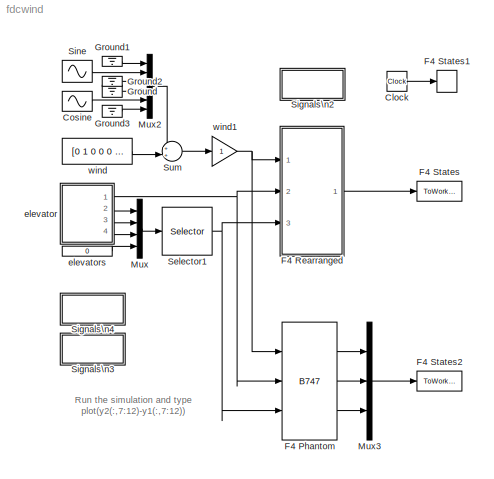
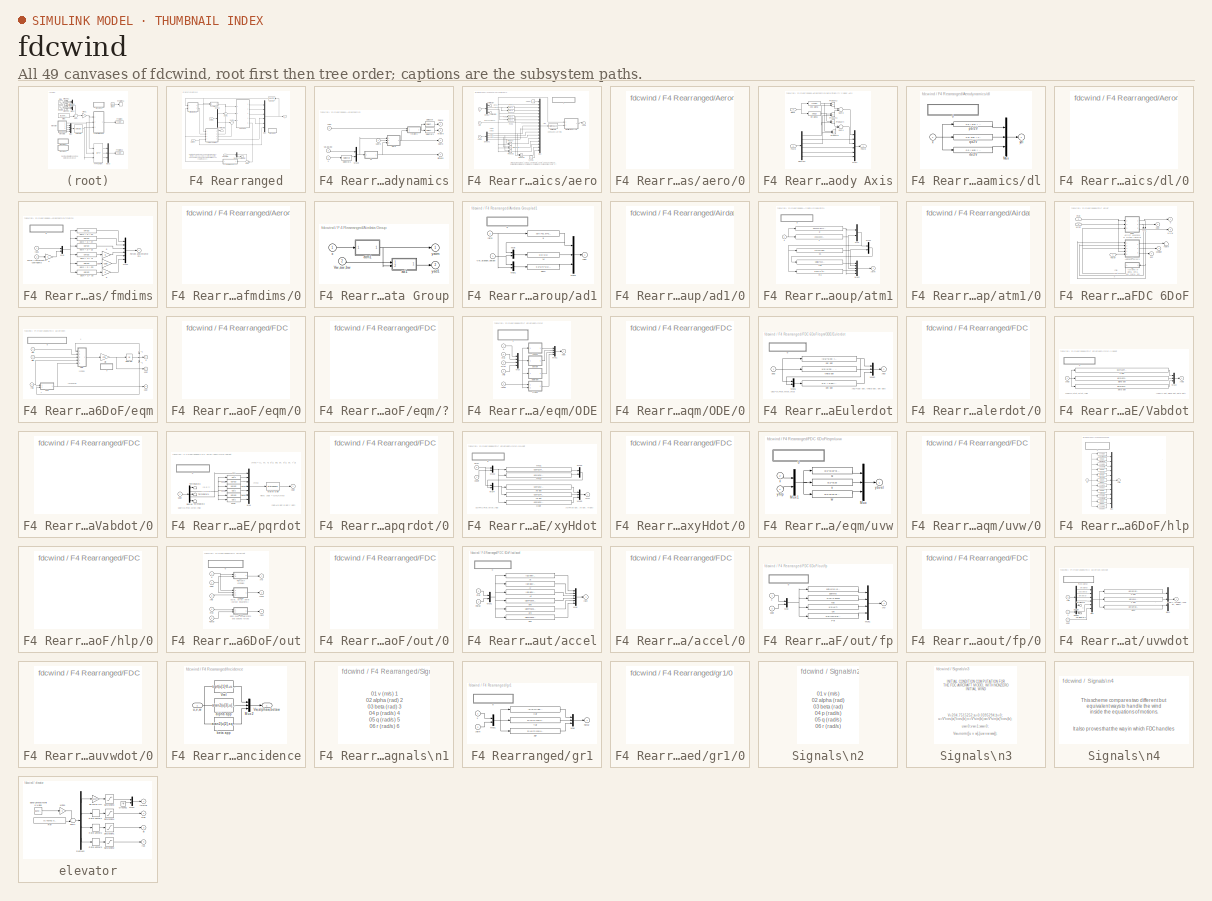
[diagram: thumbnail index - all 49 canvases of the model, root first then tree order]
MODEL fdcwind
KIND model
CONFIG AbsTol = auto
CONFIG FixedStep = auto
CONFIG MaxStep = auto
CONFIG RelTol = 1e-3
CONFIG Solver = ode45
CONFIG SolverMode = Auto
CONFIG StartTime = 0.0
CONFIG StopTime = 50.0
BLOCK [Reference]  F4 Phantom   REF=airlib/B747  (lib defined in mdl_00852699f85c, mdl_b3a2112ccc5d, +1 more)
  CD_wind = [0.0205  0.3   0  0  -0.1]
  CL_wind = [0.1    3.75    1.8    0    0.4]
  CY_body = [0   -0.68   0     0     0.0160    0.095]
  Cl_body = [0    -0.16    -0.34   0.13    -0.013    0.008]
  Cm_body = [0.025  -0.4   -2.7    0    -0.58]
  Cn_body = [0    0.125   -0.036    -0.270     0.001   -0.066]
  GM1 = [4.8768   11.79576   49.23861   33895.4489   165680.954   189543.35   0   2982.7995  0   17690.1]
  Ports = [3, 3, 0, 0, 0]
  SourceBlock = airlib/B747
  SourceType = General Nonlinear Aircraft Model
  x0 = [204.7539671696894 0.0395294 -0.00488392967079  0 0 0   0 0.0395294 0   -70 -20 6065.68]
BLOCK [Clock] Clock
  Decimation = 10
  DisplayTime = off
BLOCK [Sin] Cosine
  Amplitude = 1
  Frequency = 1
  Phase = pi/2
  SampleTime = 0
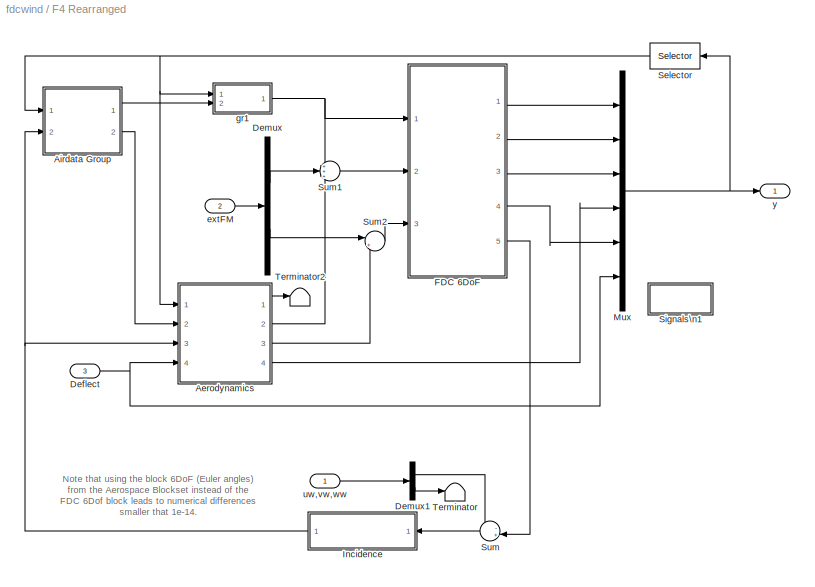
BLOCK [SubSystem] F4 Rearranged
  MaskCallbackString = |||||||
  MaskDescription = The first input contains the wind velocity and acceleration.\n  The second input contains external forces and moments in body axis.\n  The third input contains the deflections of elevators, ailerons, rudder\n  and, flaps. For a list of outputs look under the mask.\n  NB : The International measurement system (MKS) is adopted.
  MaskEnableString = on,on,on,on,on,on,on,on
  MaskIconFrame = on
  MaskIconOpaque = on
  MaskIconRotate = none
  MaskIconUnits = autoscale
  MaskInitialization = AM=zeros(6,19);\nAM(1,[1 2 9 11 12])=reshape(CD_wind,1,5);\nAM(3,[1 2 9 11 12])=reshape(CL_wind,1,5);\nAM(5,[1 2 9 11 12])=reshape(Cm_body,1,5);\nAM(2,[1 5 8 10 13 14])=reshape(CY_body,1,6);\nAM(4,[1 5 8 10 13 14])=reshape(Cl_body,1,6);\nAM(6,[1 5 8 10 13 14])=reshape(Cn_body,1,6);\n\nIx=GM1(4);Iy=GM1(5);Iz=GM1(6);\nJxy=GM1(7);Jxz=GM1(8);Jyz=GM1(9);\n\ndetI = Ix*Iy*Iz - 2*Jxy*Jxz*Jyz - Ix*Jyz^2 - ...<+1166ch>
  MaskPromptString = Geometry and Mass : [cbar   b    S    Ix   Iy   Iz   Jxy  Jxz  Jyz  m]|Aerodynamic D-Force Coefficients : [CD0 CDa CDq CDde CDih]|Aerodynamic L-Force Coefficients : [CL0 CLa CLq CLde CLih]|Aerodynamic Y-Moment Coefficients : [Cm0 Cma Cmq Cmde Cmih]|Aerodynamic Y-Force Coefficients : [CY0 CYb CYp CYr CYda CYdr]|Aerodynamic X-moment Coefficients : [Cl0 Clb Clp Clr Clda Cldr]|Aerodynamic Z-moment Coe...<+103ch>
  MaskStyleString = edit,edit,edit,edit,edit,edit,edit,edit
  MaskTunableValueString = on,on,on,on,on,on,on,on
  MaskValueString = [4.8768   11.79576   49.23861   33895.4489   165680.954   189543.35   0   2982.7995  0   17690.1]|[0.0205  0.3   0  0  -0.1]|[0.1    3.75    1.8    0    0.4]|[0.025  -0.4   -2.7    0    -0.58]|[0   -0.68   0     0     0.0160    0.095]|[0    -0.16    -0.34   0.13    -0.013    0.008]|[0    0.125   -0.036    -0.270     0.001   -0.066]|[204.7515252  0.0395294 0   0 0 0   0 0.0395294 0   -70 -20 6065.6...<+2ch>
  MaskVariables = GM1=@1;CD_wind=@2;CL_wind=@3;Cm_body=@4;CY_body=@5;Cl_body=@6;Cn_body=@7;x0=@8;
  MaskVisibilityString = on,on,on,on,on,on,on,on
  Ports = [3, 1, 0, 0, 0]
  ShowPortLabels = on
BLOCK [SubSystem] F4 Rearranged/Aerodynamics
  Ports = [4, 4, 0, 0, 0]
  ShowPortLabels = on
BLOCK [Outport] F4 Rearranged/Aerodynamics/Caero
  InitialOutput = []
  OutputWhenDisabled = held
  Port = 1
BLOCK [Outport] F4 Rearranged/Aerodynamics/Dimless
  InitialOutput = []
  OutputWhenDisabled = held
  Port = 4
BLOCK [Outport] F4 Rearranged/Aerodynamics/Faero
  InitialOutput = []
  OutputWhenDisabled = held
  Port = 2
BLOCK [Outport] F4 Rearranged/Aerodynamics/Maero
  InitialOutput = []
  OutputWhenDisabled = held
  Port = 3
BLOCK [Mux] F4 Rearranged/Aerodynamics/Mux3
  DisplayOption = bar
  Inputs = 2
  Ports = [2, 1, 0, 0, 0]
BLOCK [Selector] F4 Rearranged/Aerodynamics/Selector
  Elements = [1:3]
  InputPortWidth = 6
BLOCK [Selector] F4 Rearranged/Aerodynamics/Selector1
  Elements = [4:6]
  InputPortWidth = 6
BLOCK [Selector] F4 Rearranged/Aerodynamics/Selector2
  Elements = [4:12]
  InputPortWidth = 12
BLOCK [Inport] F4 Rearranged/Aerodynamics/Vw,aw,bw
  DataType = auto
  Interpolate = on
  Port = 3
  PortWidth = 3
  SampleTime = -1
  SignalType = auto
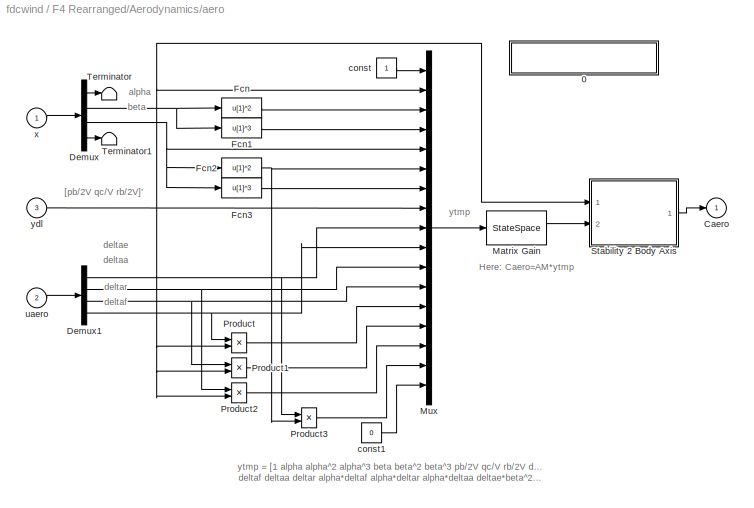
BLOCK [SubSystem] F4 Rearranged/Aerodynamics/aero
  MaskDescription = Aerodynamic model of the DHC-2 'Beaver'.
  MaskDisplay = disp('Aeromod\\n(General)')
  MaskHelp = eval('fdchelp aeromod')
  MaskIconFrame = on
  MaskIconOpaque = on
  MaskIconRotate = none
  MaskIconUnits = autoscale
  MaskType = Aeromod
  Ports = [3, 1, 0, 0, 0]
  ShowPortLabels = off
BLOCK [SubSystem] F4 Rearranged/Aerodynamics/aero/0
  MaskDisplay = disp('AEROMOD\\nM.O. Rauw, October 1997')
  MaskIconFrame = on
  MaskIconOpaque = on
  MaskIconRotate = none
  MaskIconUnits = autoscale
  OpenFcn = fdchelp aeromod
  Ports = [0, 0, 0, 0, 0]
  ShowPortLabels = off
BLOCK [Outport] F4 Rearranged/Aerodynamics/aero/Caero
  InitialOutput = []
  OutputWhenDisabled = held
  Port = 1
BLOCK [Demux] F4 Rearranged/Aerodynamics/aero/Demux
  Outputs = [1 1 1 9]
  Ports = [1, 4, 0, 0, 0]
BLOCK [Demux] F4 Rearranged/Aerodynamics/aero/Demux1
  Outputs = 4
  Ports = [1, 4, 0, 0, 0]
BLOCK [Fcn] F4 Rearranged/Aerodynamics/aero/Fcn
  Expr = u[1]^2
BLOCK [Fcn] F4 Rearranged/Aerodynamics/aero/Fcn1
  Expr = u[1]^3
BLOCK [Fcn] F4 Rearranged/Aerodynamics/aero/Fcn2
  Expr = u[1]^2
BLOCK [Fcn] F4 Rearranged/Aerodynamics/aero/Fcn3
  Expr = u[1]^3
BLOCK [StateSpace] F4 Rearranged/Aerodynamics/aero/Matrix Gain
  A = []
  B = []
  C = []
  D = AM
  X0 = 0
BLOCK [Mux] F4 Rearranged/Aerodynamics/aero/Mux
  DisplayOption = none
  Inputs = [1 1 1 1 1 1 1 3 1 1 1 1 1 1 1 1 1]
  Ports = [17, 1, 0, 0, 0]
BLOCK [Product] F4 Rearranged/Aerodynamics/aero/Product
  Inputs = 2
  Ports = [2, 1, 0, 0, 0]
  SaturateOnIntegerOverflow = on
BLOCK [Product] F4 Rearranged/Aerodynamics/aero/Product1
  Inputs = 2
  Ports = [2, 1, 0, 0, 0]
  SaturateOnIntegerOverflow = on
BLOCK [Product] F4 Rearranged/Aerodynamics/aero/Product2
  Inputs = 2
  Ports = [2, 1, 0, 0, 0]
  SaturateOnIntegerOverflow = on
BLOCK [Product] F4 Rearranged/Aerodynamics/aero/Product3
  Inputs = 2
  Ports = [2, 1, 0, 0, 0]
  SaturateOnIntegerOverflow = on
BLOCK [SubSystem] F4 Rearranged/Aerodynamics/aero/Stability 2 Body Axis
  Ports = [2, 1, 0, 0, 0]
  ShowPortLabels = on
BLOCK [Demux] F4 Rearranged/Aerodynamics/aero/Stability 2 Body Axis/Demux2
  Outputs = 6
  Ports = [1, 6, 0, 0, 0]
BLOCK [Outport] F4 Rearranged/Aerodynamics/aero/Stability 2 Body Axis/FbMb
  InitialOutput = []
  OutputWhenDisabled = held
  Port = 1
BLOCK [Inport] F4 Rearranged/Aerodynamics/aero/Stability 2 Body Axis/FsMb
  DataType = auto
  Interpolate = on
  Port = 2
  PortWidth = -1
  SampleTime = -1
  SignalType = auto
BLOCK [Mux] F4 Rearranged/Aerodynamics/aero/Stability 2 Body Axis/Mux1
  DisplayOption = none
  Inputs = 6
  Ports = [6, 1, 0, 0, 0]
BLOCK [Product] F4 Rearranged/Aerodynamics/aero/Stability 2 Body Axis/Product2
  Inputs = 2
  Ports = [2, 1, 0, 0, 0]
  SaturateOnIntegerOverflow = on
BLOCK [Product] F4 Rearranged/Aerodynamics/aero/Stability 2 Body Axis/Product3
  Inputs = 2
  Ports = [2, 1, 0, 0, 0]
  SaturateOnIntegerOverflow = on
BLOCK [Product] F4 Rearranged/Aerodynamics/aero/Stability 2 Body Axis/Product4
  Inputs = 2
  Ports = [2, 1, 0, 0, 0]
  SaturateOnIntegerOverflow = on
BLOCK [Product] F4 Rearranged/Aerodynamics/aero/Stability 2 Body Axis/Product5
  Inputs = 2
  Ports = [2, 1, 0, 0, 0]
  SaturateOnIntegerOverflow = on
BLOCK [Sum] F4 Rearranged/Aerodynamics/aero/Stability 2 Body Axis/Sum3
  IconShape = round
  Inputs = -+
  Ports = [2, 1, 0, 0, 0]
  SaturateOnIntegerOverflow = on
BLOCK [Sum] F4 Rearranged/Aerodynamics/aero/Stability 2 Body Axis/Sum4
  IconShape = round
  Inputs = --
  Ports = [2, 1, 0, 0, 0]
  SaturateOnIntegerOverflow = on
BLOCK [Inport] F4 Rearranged/Aerodynamics/aero/Stability 2 Body Axis/alpha
  DataType = auto
  Interpolate = on
  Port = 1
  PortWidth = -1
  SampleTime = -1
  SignalType = auto
BLOCK [Fcn] F4 Rearranged/Aerodynamics/aero/Stability 2 Body Axis/cos alpha
  Expr = cos(u[1])
BLOCK [Fcn] F4 Rearranged/Aerodynamics/aero/Stability 2 Body Axis/sin alpha
  Expr = sin(u[1])
BLOCK [Terminator] F4 Rearranged/Aerodynamics/aero/Terminator
BLOCK [Terminator] F4 Rearranged/Aerodynamics/aero/Terminator1
BLOCK [Constant] F4 Rearranged/Aerodynamics/aero/const
  Value = 1
BLOCK [Constant] F4 Rearranged/Aerodynamics/aero/const1
  Value = 0
BLOCK [Inport] F4 Rearranged/Aerodynamics/aero/uaero
  DataType = auto
  Interpolate = on
  Port = 2
  PortWidth = -1
  SampleTime = -1
  SignalType = auto
BLOCK [Inport] F4 Rearranged/Aerodynamics/aero/x
  DataType = auto
  Interpolate = on
  Port = 1
  PortWidth = -1
  SampleTime = -1
  SignalType = auto
BLOCK [Inport] F4 Rearranged/Aerodynamics/aero/ydl
  DataType = auto
  Interpolate = on
  Port = 3
  PortWidth = -1
  SampleTime = -1
  SignalType = auto
BLOCK [SubSystem] F4 Rearranged/Aerodynamics/dl
  MaskCallbackString = |
  MaskDescription = Dimensionless rotational velocities.
  MaskDisplay = disp('Dimless')
  MaskEnableString = on,on
  MaskHelp = eval('fdchelp dimless')
  MaskIconFrame = on
  MaskIconOpaque = on
  MaskIconRotate = none
  MaskIconUnits = autoscale
  MaskPromptString = Mean aerodynamic chord [m]:|Wing span [m]:
  MaskStyleString = edit,edit
  MaskTunableValueString = on,on
  MaskType = Dimless
  MaskValueString = GM1(1)|GM1(2)
  MaskVariables = cbar=@1;b=@2;
  MaskVisibilityString = on,on
  Ports = [1, 1, 0, 0, 0]
  ShowPortLabels = off
BLOCK [SubSystem] F4 Rearranged/Aerodynamics/dl/0
  MaskDisplay = disp('DIMLESS\\nM.O. Rauw, October 1997')
  MaskIconFrame = on
  MaskIconOpaque = on
  MaskIconRotate = none
  MaskIconUnits = autoscale
  OpenFcn = fdchelp dimless
  Ports = [0, 0, 0, 0, 0]
  ShowPortLabels = off
BLOCK [Mux] F4 Rearranged/Aerodynamics/dl/Mux
  DisplayOption = none
  Inputs = 3
  Ports = [3, 1, 0, 0, 0]
BLOCK [Fcn] F4 Rearranged/Aerodynamics/dl/pb//2V
  Expr = 0.5 * u[4] * b / u[1]
BLOCK [Fcn] F4 Rearranged/Aerodynamics/dl/qc//2V
  Expr = 0.5* u[5] * cbar / u[1]
BLOCK [Fcn] F4 Rearranged/Aerodynamics/dl/rb//2V
  Expr = 0.5 * u[6] * b / u[1]
BLOCK [Inport] F4 Rearranged/Aerodynamics/dl/x
  DataType = auto
  Interpolate = on
  Port = 1
  PortWidth = -1
  SampleTime = -1
  SignalType = auto
BLOCK [Outport] F4 Rearranged/Aerodynamics/dl/ydl
  InitialOutput = []
  OutputWhenDisabled = held
  Port = 1
BLOCK [SubSystem] F4 Rearranged/Aerodynamics/fmdims
  MaskCallbackString = ||
  MaskDescription = Calculate forces and moments from\ndimensionless coefficients.
  MaskDisplay = disp('FMdims')
  MaskEnableString = on,on,on
  MaskHelp = eval('fdchelp fmdims')
  MaskIconFrame = on
  MaskIconOpaque = on
  MaskIconRotate = none
  MaskIconUnits = autoscale
  MaskPromptString = Mean aerodynamic chord [m]:|Wing span [m]:|Wing surface [m^2]:
  MaskStyleString = edit,edit,edit
  MaskTunableValueString = on,on,on
  MaskType = FMdims
  MaskValueString = GM1(1)|GM1(2)|GM1(3)
  MaskVariables = cbar=@1;b=@2;S=@3;
  MaskVisibilityString = on,on,on
  Ports = [2, 1, 0, 0, 0]
  ShowPortLabels = off
BLOCK [SubSystem] F4 Rearranged/Aerodynamics/fmdims/0
  MaskDisplay = disp('FMDIMS\\nM.O. Rauw, October 1997')
  MaskIconFrame = on
  MaskIconOpaque = on
  MaskIconRotate = none
  MaskIconUnits = autoscale
  OpenFcn = fdchelp fmdims
  Ports = [0, 0, 0, 0, 0]
  ShowPortLabels = off
BLOCK [Inport] F4 Rearranged/Aerodynamics/fmdims/Force //\nmoment\ncoefficients
  DataType = auto
  Interpolate = on
  Port = 2
  PortWidth = -1
  SampleTime = -1
  SignalType = auto
BLOCK [Outport] F4 Rearranged/Aerodynamics/fmdims/Forces and\nmoments
  InitialOutput = []
  OutputWhenDisabled = held
  Port = 1
BLOCK [Mux] F4 Rearranged/Aerodynamics/fmdims/Mux
  DisplayOption = none
  Inputs = [3 6]
  Ports = [2, 1, 0, 0, 0]
BLOCK [Mux] F4 Rearranged/Aerodynamics/fmdims/Mux1
  DisplayOption = none
  Inputs = 6
  Ports = [6, 1, 0, 0, 0]
BLOCK [Gain] F4 Rearranged/Aerodynamics/fmdims/S
  Gain = S
  SaturateOnIntegerOverflow = on
BLOCK [Gain] F4 Rearranged/Aerodynamics/fmdims/b
  Gain = b
  SaturateOnIntegerOverflow = on
BLOCK [Gain] F4 Rearranged/Aerodynamics/fmdims/b 
  Gain = b
  SaturateOnIntegerOverflow = on
BLOCK [Gain] F4 Rearranged/Aerodynamics/fmdims/cbar
  Gain = cbar
  SaturateOnIntegerOverflow = on
BLOCK [Fcn] F4 Rearranged/Aerodynamics/fmdims/qdyn * S * CX
  Expr = u[4]*u[3]
BLOCK [Fcn] F4 Rearranged/Aerodynamics/fmdims/qdyn * S * CY
  Expr = u[5]*u[3]
BLOCK [Fcn] F4 Rearranged/Aerodynamics/fmdims/qdyn * S * CZ
  Expr = u[6]*u[3]
BLOCK [Fcn] F4 Rearranged/Aerodynamics/fmdims/qdyn * S * Cl
  Expr = u[7]*u[3]
BLOCK [Fcn] F4 Rearranged/Aerodynamics/fmdims/qdyn * S * Cm
  Expr = u[8]*u[3]
BLOCK [Fcn] F4 Rearranged/Aerodynamics/fmdims/qdyn * S * Cn
  Expr = u[9]*u[3]
BLOCK [Inport] F4 Rearranged/Aerodynamics/fmdims/yad1
  DataType = auto
  Interpolate = on
  Port = 1
  PortWidth = -1
  SampleTime = -1
  SignalType = auto
BLOCK [Inport] F4 Rearranged/Aerodynamics/uaero
  DataType = auto
  Interpolate = on
  Port = 4
  PortWidth = -1
  SampleTime = -1
  SignalType = auto
BLOCK [Inport] F4 Rearranged/Aerodynamics/x
  DataType = auto
  Interpolate = on
  Port = 1
  PortWidth = -1
  SampleTime = -1
  SignalType = auto
BLOCK [Inport] F4 Rearranged/Aerodynamics/yad1
  DataType = auto
  Interpolate = on
  Port = 2
  PortWidth = -1
  SampleTime = -1
  SignalType = auto
BLOCK [SubSystem] F4 Rearranged/Airdata Group
  Ports = [2, 2, 0, 0, 0]
  ShowPortLabels = on
BLOCK [Inport] F4 Rearranged/Airdata Group/Vw,aw,bw
  DataType = auto
  Interpolate = on
  Port = 2
  PortWidth = 3
  SampleTime = -1
  SignalType = auto
BLOCK [SubSystem] F4 Rearranged/Airdata Group/ad1
  MaskDescription = Basic airdata variables
  MaskDisplay = disp('Airdata1')
  MaskHelp = eval('fdchelp airdata1')
  MaskIconFrame = on
  MaskIconOpaque = on
  MaskIconRotate = none
  MaskIconUnits = autoscale
  MaskType = Airdata1
  Ports = [2, 1, 0, 0, 0]
  ShowPortLabels = off
BLOCK [SubSystem] F4 Rearranged/Airdata Group/ad1/0
  MaskDisplay = disp('AIRDATA1\\nM.O. Rauw, October 1997')
  MaskIconFrame = on
  MaskIconOpaque = on
  MaskIconRotate = none
  MaskIconUnits = autoscale
  OpenFcn = fdchelp airdata1
  Ports = [0, 0, 0, 0, 0]
  ShowPortLabels = off
BLOCK [Fcn] F4 Rearranged/Airdata Group/ad1/M
  Expr = u[2]/u[1]
BLOCK [Mux] F4 Rearranged/Airdata Group/ad1/Mux
  DisplayOption = none
  Inputs = [1 3]
  Ports = [2, 1, 0, 0, 0]
BLOCK [Mux] F4 Rearranged/Airdata Group/ad1/Mux1
  DisplayOption = none
  Inputs = [3 5]
  Ports = [2, 1, 0, 0, 0]
BLOCK [Mux] F4 Rearranged/Airdata Group/ad1/Mux2
  DisplayOption = none
  Inputs = 3
  Ports = [3, 1, 0, 0, 0]
BLOCK [Inport] F4 Rearranged/Airdata Group/ad1/Vw,alphaw,betaw
  DataType = auto
  Interpolate = on
  Port = 1
  PortWidth = -1
  SampleTime = -1
  SignalType = auto
BLOCK [Fcn] F4 Rearranged/Airdata Group/ad1/a
  Expr = sqrt(401.8743*u[3])
BLOCK [Fcn] F4 Rearranged/Airdata Group/ad1/qdyn
  Expr = 0.5*u[4]*u[1]^2
BLOCK [Outport] F4 Rearranged/Airdata Group/ad1/yad1
  InitialOutput = []
  OutputWhenDisabled = held
  Port = 1
BLOCK [Inport] F4 Rearranged/Airdata Group/ad1/yatm
  DataType = auto
  Interpolate = on
  Port = 2
  PortWidth = -1
  SampleTime = -1
  SignalType = auto
BLOCK [SubSystem] F4 Rearranged/Airdata Group/atm1
  MaskDescription = 1-Atmosphere variables\n2-Air density\n3-Air Pressure\n4-Temperature\n5-Air viscosity\n6-Gravity
  MaskDisplay = disp('Atmosph')
  MaskHelp = eval('fdchelp atmosph')
  MaskIconFrame = on
  MaskIconOpaque = on
  MaskIconRotate = none
  MaskIconUnits = autoscale
  MaskType = Atmosph
  Ports = [1, 1, 0, 0, 0]
  ShowPortLabels = on
BLOCK [SubSystem] F4 Rearranged/Airdata Group/atm1/0
  MaskDisplay = disp('ATMOSPH\\nM.O. Rauw, October 1997')
  MaskIconFrame = on
  MaskIconOpaque = on
  MaskIconRotate = none
  MaskIconUnits = autoscale
  OpenFcn = fdchelp atmosph
  Ports = [0, 0, 0, 0, 0]
  ShowPortLabels = off
BLOCK [Mux] F4 Rearranged/Airdata Group/atm1/Mux
  DisplayOption = none
  Inputs = 2
  Ports = [2, 1, 0, 0, 0]
BLOCK [Mux] F4 Rearranged/Airdata Group/atm1/Mux1
  DisplayOption = none
  Inputs = [2 1]
  Ports = [2, 1, 0, 0, 0]
BLOCK [Mux] F4 Rearranged/Airdata Group/atm1/Mux2
  DisplayOption = none
  Inputs = 5
  Ports = [5, 1, 0, 0, 0]
BLOCK [Fcn] F4 Rearranged/Airdata Group/atm1/T
  Expr = 288.15 - 0.0065*u[12]
BLOCK [Fcn] F4 Rearranged/Airdata Group/atm1/g
  Expr = 9.80665*(6371020/(6371020+u[12]))^2
BLOCK [Fcn] F4 Rearranged/Airdata Group/atm1/mu
  Expr = (1.458*10^(-6)*u[2]^1.5)/(u[2]+110.4)
BLOCK [Fcn] F4 Rearranged/Airdata Group/atm1/ps
  Expr = 101325*(u[2]/288.15)^(u[1]/1.86584)
BLOCK [Fcn] F4 Rearranged/Airdata Group/atm1/rho
  Expr = u[3]/(287.053*u[2])
BLOCK [Inport] F4 Rearranged/Airdata Group/atm1/x
  DataType = auto
  Interpolate = on
  Port = 1
  PortWidth = -1
  SampleTime = -1
  SignalType = auto
BLOCK [Outport] F4 Rearranged/Airdata Group/atm1/yatm
  InitialOutput = []
  OutputWhenDisabled = held
  Port = 1
BLOCK [Inport] F4 Rearranged/Airdata Group/x
  DataType = auto
  Interpolate = on
  Port = 1
  PortWidth = 12
  SampleTime = -1
  SignalType = auto
BLOCK [Outport] F4 Rearranged/Airdata Group/yad1
  InitialOutput = []
  OutputWhenDisabled = held
  Port = 2
BLOCK [Outport] F4 Rearranged/Airdata Group/yatm
  InitialOutput = []
  OutputWhenDisabled = held
  Port = 1
BLOCK [Inport] F4 Rearranged/Deflect
  DataType = auto
  Interpolate = on
  Port = 3
  PortWidth = -1
  SampleTime = -1
  SignalType = auto
BLOCK [Demux] F4 Rearranged/Demux
  Outputs = [3,3]
  Ports = [1, 2, 0, 0, 0]
BLOCK [Demux] F4 Rearranged/Demux1
  Outputs = [3,3]
  Ports = [1, 2, 0, 0, 0]
BLOCK [SubSystem] F4 Rearranged/FDC 6DoF
  Ports = [3, 5, 0, 0, 0]
  ShowPortLabels = on
BLOCK [Gain] F4 Rearranged/FDC 6DoF/ *1
  Gain = 1
  SaturateOnIntegerOverflow = on
BLOCK [Gain] F4 Rearranged/FDC 6DoF/*1
  Gain = 1
  SaturateOnIntegerOverflow = on
BLOCK [Inport] F4 Rearranged/FDC 6DoF/Fgrav
  DataType = auto
  Interpolate = on
  Port = 1
  PortWidth = 3
  SampleTime = -1
  SignalType = auto
BLOCK [Inport] F4 Rearranged/FDC 6DoF/Ftot
  DataType = auto
  Interpolate = on
  Port = 2
  PortWidth = 3
  SampleTime = -1
  SignalType = auto
BLOCK [Inport] F4 Rearranged/FDC 6DoF/Mtot
  DataType = auto
  Interpolate = on
  Port = 3
  PortWidth = 3
  SampleTime = -1
  SignalType = auto
BLOCK [Outport] F4 Rearranged/FDC 6DoF/acc
  InitialOutput = []
  OutputWhenDisabled = held
  Port = 4
BLOCK [SubSystem] F4 Rearranged/FDC 6DoF/eqm
  Ports = [3, 3, 0, 0, 0]
  ShowPortLabels = on
BLOCK [Gain] F4 Rearranged/FDC 6DoF/eqm/ *1
  Gain = 1
  SaturateOnIntegerOverflow = on
BLOCK [Gain] F4 Rearranged/FDC 6DoF/eqm/*1
  Gain = 1
  SaturateOnIntegerOverflow = on
BLOCK [SubSystem] F4 Rearranged/FDC 6DoF/eqm/0
  MaskDisplay = disp('EQUATIONS OF MOTION (level 3)\\nM.O. Rauw')
  MaskIconFrame = on
  MaskIconOpaque = on
  MaskIconRotate = none
  MaskIconUnits = autoscale
  OpenFcn = fdchelp eqmotion
  Ports = [0, 0, 0, 0, 0]
  ShowPortLabels = off
BLOCK [SubSystem] F4 Rearranged/FDC 6DoF/eqm/?
  MaskDisplay = disp('More info\\nfor xfix')
  MaskIconFrame = on
  MaskIconOpaque = on
  MaskIconRotate = none
  MaskIconUnits = autoscale
  OpenFcn = fdchelp xfix
  Ports = [0, 0, 0, 0, 0]
  ShowPortLabels = off
BLOCK [Inport] F4 Rearranged/FDC 6DoF/eqm/Ftot
  DataType = auto
  Interpolate = on
  Port = 1
  PortWidth = -1
  SampleTime = -1
  SignalType = auto
BLOCK [Integrator] F4 Rearranged/FDC 6DoF/eqm/Integrator
  AbsoluteTolerance = auto
  ExternalReset = none
  InitialCondition = x0
  InitialConditionSource = internal
  LimitOutput = off
  LowerSaturationLimit = -inf
  Ports = [1, 1, 0, 0, 0]
  ShowSaturationPort = off
  ShowStatePort = off
  UpperSaturationLimit = inf
BLOCK [Inport] F4 Rearranged/FDC 6DoF/eqm/Mtot
  DataType = auto
  Interpolate = on
  Port = 2
  PortWidth = -1
  SampleTime = -1
  SignalType = auto
BLOCK [SubSystem] F4 Rearranged/FDC 6DoF/eqm/ODE
  Ports = [5, 1, 0, 0, 0]
  ShowPortLabels = off
BLOCK [SubSystem] F4 Rearranged/FDC 6DoF/eqm/ODE/0
  MaskDisplay = disp('12 Ordinary Differential\\nEquations (level 4)\\nM.O. Rauw')
  MaskIconFrame = on
  MaskIconOpaque = on
  MaskIconRotate = none
  MaskIconUnits = autoscale
  OpenFcn = fdchelp 12odes
  Ports = [0, 0, 0, 0, 0]
  ShowPortLabels = off
BLOCK [SubSystem] F4 Rearranged/FDC 6DoF/eqm/ODE/Eulerdot
  MaskDescription = Calculation of d(psi)/dt, d(theta)/dt,\nand d(phi/dt)
  MaskDisplay = disp('psi dot\\ntheta dot\\nphi dot')
  MaskHelp = eval('fdchelp eulerdot')
  MaskIconFrame = on
  MaskIconOpaque = on
  MaskIconRotate = none
  MaskIconUnits = autoscale
  MaskType = Eulerdot
  Ports = [1, 1, 0, 0, 0]
  ShowPortLabels = off
BLOCK [SubSystem] F4 Rearranged/FDC 6DoF/eqm/ODE/Eulerdot/0
  MaskDisplay = disp('EULERDOT\\nM.O. Rauw, October 1997')
  MaskIconFrame = on
  MaskIconOpaque = on
  MaskIconRotate = none
  MaskIconUnits = autoscale
  OpenFcn = fdchelp eulerdot
  Ports = [0, 0, 0, 0, 0]
  ShowPortLabels = off
BLOCK [Mux] F4 Rearranged/FDC 6DoF/eqm/ODE/Eulerdot/Mux1
  DisplayOption = none
  Inputs = [29 1]
  Ports = [2, 1, 0, 0, 0]
BLOCK [Mux] F4 Rearranged/FDC 6DoF/eqm/ODE/Eulerdot/Mux2
  DisplayOption = none
  Inputs = 3
  Ports = [3, 1, 0, 0, 0]
BLOCK [Fcn] F4 Rearranged/FDC 6DoF/eqm/ODE/Eulerdot/phi dot
  Expr = u[4] + u[30]*u[26]
BLOCK [Fcn] F4 Rearranged/FDC 6DoF/eqm/ODE/Eulerdot/psi dot
  Expr = (u[5]*u[28] + u[6]*u[29])/u[27]
BLOCK [Fcn] F4 Rearranged/FDC 6DoF/eqm/ODE/Eulerdot/theta dot
  Expr = u[5]*u[29] - u[6]*u[28]
BLOCK [Inport] F4 Rearranged/FDC 6DoF/eqm/ODE/Eulerdot/ueul
  DataType = auto
  Interpolate = on
  Port = 1
  PortWidth = -1
  SampleTime = -1
  SignalType = auto
BLOCK [Outport] F4 Rearranged/FDC 6DoF/eqm/ODE/Eulerdot/yeul
  InitialOutput = []
  OutputWhenDisabled = held
  Port = 1
BLOCK [Inport] F4 Rearranged/FDC 6DoF/eqm/ODE/Ftot
  DataType = auto
  Interpolate = on
  Port = 2
  PortWidth = -1
  SampleTime = -1
  SignalType = auto
BLOCK [Inport] F4 Rearranged/FDC 6DoF/eqm/ODE/Mtot
  DataType = auto
  Interpolate = on
  Port = 3
  PortWidth = -1
  SampleTime = -1
  SignalType = auto
BLOCK [Mux] F4 Rearranged/FDC 6DoF/eqm/ODE/Mux
  DisplayOption = none
  Inputs = [12 3 3 11]
  Ports = [4, 1, 0, 0, 0]
BLOCK [Mux] F4 Rearranged/FDC 6DoF/eqm/ODE/Mux1
  DisplayOption = none
  Inputs = [3 3 3 3]
  Ports = [4, 1, 0, 0, 0]
BLOCK [SubSystem] F4 Rearranged/FDC 6DoF/eqm/ODE/Vabdot
  MaskDescription = Calculation of dV/dt, dalpha/dt, dbeta/dt.
  MaskDisplay = disp('V dot\\nalpha dot\\nbeta dot')
  MaskEnableString = on
  MaskHelp = eval('fdchelp vabdot')
  MaskIconFrame = on
  MaskIconOpaque = on
  MaskIconRotate = none
  MaskIconUnits = autoscale
  MaskPromptString = Mass of the aircraft [kg]:
  MaskStyleString = edit
  MaskTunableValueString = on
  MaskType = Vabdot
  MaskValueString = GM1(10)
  MaskVariables = m=@1;
  MaskVisibilityString = on
  Ports = [1, 1, 0, 0, 0]
  ShowPortLabels = off
BLOCK [SubSystem] F4 Rearranged/FDC 6DoF/eqm/ODE/Vabdot/0
  MaskDisplay = disp('VABDOT\\nM.O. Rauw, October 1997')
  MaskIconFrame = on
  MaskIconOpaque = on
  MaskIconRotate = none
  MaskIconUnits = autoscale
  OpenFcn = fdchelp vabdot
  Ports = [0, 0, 0, 0, 0]
  ShowPortLabels = off
BLOCK [Mux] F4 Rearranged/FDC 6DoF/eqm/ODE/Vabdot/Mux2
  DisplayOption = none
  Inputs = 3
  Ports = [3, 1, 0, 0, 0]
BLOCK [Fcn] F4 Rearranged/FDC 6DoF/eqm/ODE/Vabdot/V dot
  Expr = (u[13]*u[19]*u[21]+u[14]*u[22]+u[15]*u[20]*u[21])/m
BLOCK [Fcn] F4 Rearranged/FDC 6DoF/eqm/ODE/Vabdot/alpha dot
  Expr = (-u[13]*u[20]+u[15]*u[19])/(m*u[1]*u[21]) - u[23]*(u[4]*u[19]+u[6]*u[20]) + u[5]
BLOCK [Fcn] F4 Rearranged/FDC 6DoF/eqm/ODE/Vabdot/beta dot
  Expr = (-u[13]*u[19]*u[22]+u[14]*u[21]-u[15]*u[20]*u[22])/(m*u[1]) + u[4]*u[20] - u[6]*u[19]
BLOCK [Inport] F4 Rearranged/FDC 6DoF/eqm/ODE/Vabdot/uVab
  DataType = auto
  Interpolate = on
  Port = 1
  PortWidth = -1
  SampleTime = -1
  SignalType = auto
BLOCK [Outport] F4 Rearranged/FDC 6DoF/eqm/ODE/Vabdot/yVab
  InitialOutput = []
  OutputWhenDisabled = held
  Port = 1
BLOCK [SubSystem] F4 Rearranged/FDC 6DoF/eqm/ODE/pqrdot
  MaskDescription = Calculation of dp/dt, dq/dt, and dr/dt
  MaskDisplay = disp('p dot\\nq dot\\nr dot')
  MaskHelp = eval('fdchelp pqrdot')
  MaskIconFrame = on
  MaskIconOpaque = on
  MaskIconRotate = none
  MaskIconUnits = autoscale
  MaskType = pqrdot
  Ports = [1, 1, 0, 0, 0]
  ShowPortLabels = off
BLOCK [SubSystem] F4 Rearranged/FDC 6DoF/eqm/ODE/pqrdot/0
  MaskDisplay = disp('PQRDOT\\nM.O. Rauw, October 1997')
  MaskIconFrame = on
  MaskIconOpaque = on
  MaskIconRotate = none
  MaskIconUnits = autoscale
  OpenFcn = fdchelp pqrdot
  Ports = [0, 0, 0, 0, 0]
  ShowPortLabels = off
BLOCK [Demux] F4 Rearranged/FDC 6DoF/eqm/ODE/pqrdot/Demux
  Outputs = [3 3 9 3 11]
  Ports = [1, 5, 0, 0, 0]
BLOCK [Fcn] F4 Rearranged/FDC 6DoF/eqm/ODE/pqrdot/Fcn
  Expr = u[1]^2
BLOCK [Fcn] F4 Rearranged/FDC 6DoF/eqm/ODE/pqrdot/Fcn1
  Expr = u[1]*u[2]
BLOCK [Fcn] F4 Rearranged/FDC 6DoF/eqm/ODE/pqrdot/Fcn2
  Expr = u[1]*u[3]
BLOCK [Fcn] F4 Rearranged/FDC 6DoF/eqm/ODE/pqrdot/Fcn3
  Expr = u[2]^2
BLOCK [Fcn] F4 Rearranged/FDC 6DoF/eqm/ODE/pqrdot/Fcn4
  Expr = u[2]*u[3]
BLOCK [Fcn] F4 Rearranged/FDC 6DoF/eqm/ODE/pqrdot/Fcn5
  Expr = u[3]^2
BLOCK [StateSpace] F4 Rearranged/FDC 6DoF/eqm/ODE/pqrdot/Matrix Gain
  A = []
  B = []
  C = []
  D = GM2
  X0 = 0
BLOCK [Mux] F4 Rearranged/FDC 6DoF/eqm/ODE/pqrdot/Mux
  DisplayOption = none
  Inputs = [3 1 1 1 1 1 1]
  Ports = [7, 1, 0, 0, 0]
BLOCK [Terminator] F4 Rearranged/FDC 6DoF/eqm/ODE/pqrdot/Terminator1
BLOCK [Terminator] F4 Rearranged/FDC 6DoF/eqm/ODE/pqrdot/Terminator2
BLOCK [Terminator] F4 Rearranged/FDC 6DoF/eqm/ODE/pqrdot/Terminator3
BLOCK [Inport] F4 Rearranged/FDC 6DoF/eqm/ODE/pqrdot/upqr
  DataType = auto
  Interpolate = on
  Port = 1
  PortWidth = -1
  SampleTime = -1
  SignalType = auto
BLOCK [Outport] F4 Rearranged/FDC 6DoF/eqm/ODE/pqrdot/ypqr
  InitialOutput = []
  OutputWhenDisabled = held
  Port = 1
BLOCK [Inport] F4 Rearranged/FDC 6DoF/eqm/ODE/x
  DataType = auto
  Interpolate = on
  Port = 1
  PortWidth = -1
  SampleTime = -1
  SignalType = auto
BLOCK [Outport] F4 Rearranged/FDC 6DoF/eqm/ODE/xdot
  InitialOutput = []
  OutputWhenDisabled = held
  Port = 1
BLOCK [SubSystem] F4 Rearranged/FDC 6DoF/eqm/ODE/xyHdot
  MaskDescription = Calculation of d(xe)/dt, d(ye)/dt, and dH/dt
  MaskDisplay = disp('xe dot\\nye dot\\nH dot')
  MaskHelp = eval('fdchelp xyhdot')
  MaskIconFrame = on
  MaskIconOpaque = on
  MaskIconRotate = none
  MaskIconUnits = autoscale
  MaskType = xyHdot
  Ports = [2, 1, 0, 0, 0]
  ShowPortLabels = off
BLOCK [SubSystem] F4 Rearranged/FDC 6DoF/eqm/ODE/xyHdot/0
  MaskDisplay = disp('XYHDOT\\nM.O. Rauw, October 1997')
  MaskIconFrame = on
  MaskIconOpaque = on
  MaskIconRotate = none
  MaskIconUnits = autoscale
  OpenFcn = fdchelp xyhdot
  Ports = [0, 0, 0, 0, 0]
  ShowPortLabels = off
BLOCK [Fcn] F4 Rearranged/FDC 6DoF/eqm/ODE/xyHdot/H dot
  Expr = u[30]*u[26] - (u[31]*u[28]+u[32]*u[29])*u[27]
BLOCK [Mux] F4 Rearranged/FDC 6DoF/eqm/ODE/xyHdot/Mux2
  DisplayOption = none
  Inputs = [29 3]
  Ports = [2, 1, 0, 0, 0]
BLOCK [Mux] F4 Rearranged/FDC 6DoF/eqm/ODE/xyHdot/Mux3
  DisplayOption = none
  Inputs = 2
  Ports = [2, 1, 0, 0, 0]
BLOCK [Mux] F4 Rearranged/FDC 6DoF/eqm/ODE/xyHdot/Mux4
  DisplayOption = none
  Inputs = [29 2]
  Ports = [2, 1, 0, 0, 0]
BLOCK [Mux] F4 Rearranged/FDC 6DoF/eqm/ODE/xyHdot/Mux5
  DisplayOption = none
  Inputs = 3
  Ports = [3, 1, 0, 0, 0]
BLOCK [Fcn] F4 Rearranged/FDC 6DoF/eqm/ODE/xyHdot/tmp1
  Expr = u[30]*u[27] + (u[31]*u[28]+u[32]*u[29])*u[26]
BLOCK [Fcn] F4 Rearranged/FDC 6DoF/eqm/ODE/xyHdot/tmp2
  Expr = u[31]*u[29] - u[32]*u[28]
BLOCK [Inport] F4 Rearranged/FDC 6DoF/eqm/ODE/xyHdot/uxYH
  DataType = auto
  Interpolate = on
  Port = 2
  PortWidth = -1
  SampleTime = -1
  SignalType = auto
BLOCK [Fcn] F4 Rearranged/FDC 6DoF/eqm/ODE/xyHdot/xe dot
  Expr = u[30]*u[25] - u[31]*u[24]
BLOCK [Inport] F4 Rearranged/FDC 6DoF/eqm/ODE/xyHdot/ybvel*
  DataType = auto
  Interpolate = on
  Port = 1
  PortWidth = -1
  SampleTime = -1
  SignalType = auto
BLOCK [Fcn] F4 Rearranged/FDC 6DoF/eqm/ODE/xyHdot/ye dot
  Expr = u[30]*u[24] + u[31]*u[25]
BLOCK [Outport] F4 Rearranged/FDC 6DoF/eqm/ODE/xyHdot/yxyH
  InitialOutput = []
  OutputWhenDisabled = held
  Port = 1
BLOCK [Inport] F4 Rearranged/FDC 6DoF/eqm/ODE/ybvel*
  DataType = auto
  Interpolate = on
  Port = 5
  PortWidth = -1
  SampleTime = -1
  SignalType = auto
BLOCK [Inport] F4 Rearranged/FDC 6DoF/eqm/ODE/yhlp
  DataType = auto
  Interpolate = on
  Port = 4
  PortWidth = -1
  SampleTime = -1
  SignalType = auto
BLOCK [Outport] F4 Rearranged/FDC 6DoF/eqm/u,v,w
  InitialOutput = []
  OutputWhenDisabled = held
  Port = 3
BLOCK [SubSystem] F4 Rearranged/FDC 6DoF/eqm/uvw
  MaskDescription = Calculation of body-axes velocities\nu, v, and w
  MaskDisplay = disp('Body-axes\\nvelocities')
  MaskHelp = eval('fdchelp uvw')
  MaskIconFrame = on
  MaskIconOpaque = on
  MaskIconRotate = none
  MaskIconUnits = autoscale
  MaskType = uvw
  Ports = [2, 1, 0, 0, 0]
  ShowPortLabels = off
BLOCK [SubSystem] F4 Rearranged/FDC 6DoF/eqm/uvw/0
  MaskDisplay = disp('UVW\\nM.O. Rauw, October 1997')
  MaskIconFrame = on
  MaskIconOpaque = on
  MaskIconRotate = none
  MaskIconUnits = autoscale
  OpenFcn = fdchelp uvw
  Ports = [0, 0, 0, 0, 0]
  ShowPortLabels = off
BLOCK [Mux] F4 Rearranged/FDC 6DoF/eqm/uvw/Mux
  DisplayOption = none
  Inputs = 3
  Ports = [3, 1, 0, 0, 0]
BLOCK [Mux] F4 Rearranged/FDC 6DoF/eqm/uvw/Mux1
  DisplayOption = none
  Inputs = [12 11]
  Ports = [2, 1, 0, 0, 0]
BLOCK [Fcn] F4 Rearranged/FDC 6DoF/eqm/uvw/u
  Expr = u[1]*u[13]*u[15]
BLOCK [Fcn] F4 Rearranged/FDC 6DoF/eqm/uvw/v
  Expr = u[1]*u[16]
BLOCK [Fcn] F4 Rearranged/FDC 6DoF/eqm/uvw/w
  Expr = u[1]*u[14]*u[15]
BLOCK [Inport] F4 Rearranged/FDC 6DoF/eqm/uvw/x
  DataType = auto
  Interpolate = on
  Port = 2
  PortWidth = -1
  SampleTime = -1
  SignalType = auto
BLOCK [Outport] F4 Rearranged/FDC 6DoF/eqm/uvw/ybvel
  InitialOutput = []
  OutputWhenDisabled = held
  Port = 1
BLOCK [Inport] F4 Rearranged/FDC 6DoF/eqm/uvw/yhlp
  DataType = auto
  Interpolate = on
  Port = 1
  PortWidth = -1
  SampleTime = -1
  SignalType = auto
BLOCK [Outport] F4 Rearranged/FDC 6DoF/eqm/x
  InitialOutput = []
  OutputWhenDisabled = held
  Port = 1
BLOCK [Outport] F4 Rearranged/FDC 6DoF/eqm/xdot
  InitialOutput = []
  OutputWhenDisabled = held
  Port = 2
BLOCK [Gain] F4 Rearranged/FDC 6DoF/eqm/xfix
  Gain = xfix
  SaturateOnIntegerOverflow = on
BLOCK [Inport] F4 Rearranged/FDC 6DoF/eqm/yhlp
  DataType = auto
  Interpolate = on
  Port = 3
  PortWidth = -1
  SampleTime = -1
  SignalType = auto
BLOCK [Terminator] F4 Rearranged/FDC 6DoF/fpath
BLOCK [SubSystem] F4 Rearranged/FDC 6DoF/hlp
  MaskDescription = Help sines and cosines
  MaskDisplay = disp('hlpfcn')
  MaskHelp = eval('fdchelp hlpfcn')
  MaskIconFrame = on
  MaskIconOpaque = on
  MaskIconRotate = none
  MaskIconUnits = autoscale
  MaskType = Hlpfcn
  Ports = [1, 1, 0, 0, 0]
  ShowPortLabels = off
BLOCK [SubSystem] F4 Rearranged/FDC 6DoF/hlp/0
  MaskDisplay = disp('HELP FUNCTIONS\\n(often used sines and cosines)\\nM.O. Rauw, October 1997')
  MaskIconFrame = on
  MaskIconOpaque = on
  MaskIconRotate = none
  MaskIconUnits = autoscale
  OpenFcn = fdchelp hlpfcn
  Ports = [0, 0, 0, 0, 0]
  ShowPortLabels = off
BLOCK [Mux] F4 Rearranged/FDC 6DoF/hlp/Mux
  DisplayOption = none
  Inputs = 11
  Ports = [11, 1, 0, 0, 0]
BLOCK [Fcn] F4 Rearranged/FDC 6DoF/hlp/cos alpha
  Expr = cos(u[2])
BLOCK [Fcn] F4 Rearranged/FDC 6DoF/hlp/cos beta
  Expr = cos(u[3])
BLOCK [Fcn] F4 Rearranged/FDC 6DoF/hlp/cos phi
  Expr = cos(u[9])
BLOCK [Fcn] F4 Rearranged/FDC 6DoF/hlp/cos psi
  Expr = cos(u[7])
BLOCK [Fcn] F4 Rearranged/FDC 6DoF/hlp/cos theta
  Expr = cos(u[8])
BLOCK [Fcn] F4 Rearranged/FDC 6DoF/hlp/sin alpha
  Expr = sin(u[2])
BLOCK [Fcn] F4 Rearranged/FDC 6DoF/hlp/sin beta
  Expr = sin(u[3])
BLOCK [Fcn] F4 Rearranged/FDC 6DoF/hlp/sin phi
  Expr = sin(u[9])
BLOCK [Fcn] F4 Rearranged/FDC 6DoF/hlp/sin psi
  Expr = sin(u[7])
BLOCK [Fcn] F4 Rearranged/FDC 6DoF/hlp/sin theta
  Expr = sin(u[8])
BLOCK [Fcn] F4 Rearranged/FDC 6DoF/hlp/tan beta
  Expr = tan(u[3])
BLOCK [Inport] F4 Rearranged/FDC 6DoF/hlp/x
  DataType = auto
  Interpolate = on
  Port = 1
  PortWidth = -1
  SampleTime = -1
  SignalType = auto
BLOCK [Outport] F4 Rearranged/FDC 6DoF/hlp/yhlp
  InitialOutput = []
  OutputWhenDisabled = held
  Port = 1
BLOCK [SubSystem] F4 Rearranged/FDC 6DoF/out
  Ports = [5, 3, 0, 0, 0]
  ShowPortLabels = on
BLOCK [SubSystem] F4 Rearranged/FDC 6DoF/out/0
  MaskDisplay = disp('Additional outputs (level 3)\\nM.O. Rauw')
  MaskIconFrame = on
  MaskIconOpaque = on
  MaskIconRotate = none
  MaskIconUnits = autoscale
  OpenFcn = fdchelp moreouts
  Ports = [0, 0, 0, 0, 0]
  ShowPortLabels = off
BLOCK [Inport] F4 Rearranged/FDC 6DoF/out/Fgrav
  DataType = auto
  Interpolate = on
  Port = 5
  PortWidth = -1
  SampleTime = -1
  SignalType = auto
BLOCK [Inport] F4 Rearranged/FDC 6DoF/out/Ftot
  DataType = auto
  Interpolate = on
  Port = 4
  PortWidth = -1
  SampleTime = -1
  SignalType = auto
BLOCK [SubSystem] F4 Rearranged/FDC 6DoF/out/accel
  MaskDescription = Body axes accelerations and \nspecific forces.
  MaskDisplay = disp('Accel')
  MaskEnableString = on
  MaskHelp = eval('fdchelp accel')
  MaskIconFrame = on
  MaskIconOpaque = on
  MaskIconRotate = none
  MaskIconUnits = autoscale
  MaskPromptString = Mass of the aircraft [kg]:
  MaskStyleString = edit
  MaskTunableValueString = on
  MaskType = accel
  MaskValueString = GM1(10)
  MaskVariables = m=@1;
  MaskVisibilityString = on
  Ports = [2, 1, 0, 0, 0]
  ShowPortLabels = off
BLOCK [SubSystem] F4 Rearranged/FDC 6DoF/out/accel/0
  MaskDisplay = disp('ACCEL\\nM.O. Rauw, October 1997')
  MaskIconFrame = on
  MaskIconOpaque = on
  MaskIconRotate = none
  MaskIconUnits = autoscale
  OpenFcn = fdchelp accel
  Ports = [0, 0, 0, 0, 0]
  ShowPortLabels = off
BLOCK [Fcn] F4 Rearranged/FDC 6DoF/out/accel/Ax
  Expr = (u[1]-u[4])/(m*9.80665)
BLOCK [Fcn] F4 Rearranged/FDC 6DoF/out/accel/Ay
  Expr = (u[2]-u[5])/(m*9.80665)
BLOCK [Fcn] F4 Rearranged/FDC 6DoF/out/accel/Az
  Expr = (u[3]-u[6])/(m*9.80665)
BLOCK [Inport] F4 Rearranged/FDC 6DoF/out/accel/Fgrav
  DataType = auto
  Interpolate = on
  Port = 2
  PortWidth = -1
  SampleTime = -1
  SignalType = auto
BLOCK [Inport] F4 Rearranged/FDC 6DoF/out/accel/Ftot
  DataType = auto
  Interpolate = on
  Port = 1
  PortWidth = -1
  SampleTime = -1
  SignalType = auto
BLOCK [Mux] F4 Rearranged/FDC 6DoF/out/accel/Mux
  DisplayOption = none
  Inputs = 6
  Ports = [6, 1, 0, 0, 0]
BLOCK [Mux] F4 Rearranged/FDC 6DoF/out/accel/Mux1
  DisplayOption = none
  Inputs = [3 3]
  Ports = [2, 1, 0, 0, 0]
BLOCK [Fcn] F4 Rearranged/FDC 6DoF/out/accel/axk
  Expr = u[1]/(m*9.80665)
BLOCK [Fcn] F4 Rearranged/FDC 6DoF/out/accel/ayk
  Expr = u[2]/(m*9.80665)
BLOCK [Fcn] F4 Rearranged/FDC 6DoF/out/accel/azk
  Expr = u[3]/(m*9.80665)
BLOCK [Outport] F4 Rearranged/FDC 6DoF/out/accel/yacc
  InitialOutput = []
  OutputWhenDisabled = held
  Port = 1
BLOCK [SubSystem] F4 Rearranged/FDC 6DoF/out/fp
  MaskDescription = Flightpath related parameters.
  MaskDisplay = disp('flpath')
  MaskEnableString = on
  MaskHelp = eval('fdchelp flpath')
  MaskIconFrame = on
  MaskIconOpaque = on
  MaskIconRotate = none
  MaskIconUnits = autoscale
  MaskPromptString = Initial value of angle of attack, alpha0:
  MaskStyleString = edit
  MaskTunableValueString = on
  MaskType = Flpath
  MaskValueString = x0(2)
  MaskVariables = alpha0=@1;
  MaskVisibilityString = on
  Ports = [2, 1, 0, 0, 0]
  ShowPortLabels = off
BLOCK [SubSystem] F4 Rearranged/FDC 6DoF/out/fp/0
  MaskDisplay = disp('FLPATH\\nM.O. Rauw, October 1997')
  MaskIconFrame = on
  MaskIconOpaque = on
  MaskIconRotate = none
  MaskIconUnits = autoscale
  OpenFcn = fdchelp flpath
  Ports = [0, 0, 0, 0, 0]
  ShowPortLabels = off
BLOCK [Mux] F4 Rearranged/FDC 6DoF/out/fp/Mux
  DisplayOption = none
  Inputs = [12 12]
  Ports = [2, 1, 0, 0, 0]
BLOCK [Mux] F4 Rearranged/FDC 6DoF/out/fp/Mux1
  DisplayOption = none
  Inputs = 4
  Ports = [4, 1, 0, 0, 0]
BLOCK [Fcn] F4 Rearranged/FDC 6DoF/out/fp/Phi
  Expr = u[9]*cos(u[8]-alpha0)
BLOCK [Fcn] F4 Rearranged/FDC 6DoF/out/fp/chi
  Expr = u[3]+u[7]
BLOCK [Fcn] F4 Rearranged/FDC 6DoF/out/fp/fpa
  Expr = u[13]/9.80665
BLOCK [Fcn] F4 Rearranged/FDC 6DoF/out/fp/gamma
  Expr = asin(u[24]/u[1])
BLOCK [Inport] F4 Rearranged/FDC 6DoF/out/fp/x
  DataType = auto
  Interpolate = on
  Port = 1
  PortWidth = -1
  SampleTime = -1
  SignalType = auto
BLOCK [Inport] F4 Rearranged/FDC 6DoF/out/fp/xdot
  DataType = auto
  Interpolate = on
  Port = 2
  PortWidth = -1
  SampleTime = -1
  SignalType = auto
BLOCK [Outport] F4 Rearranged/FDC 6DoF/out/fp/yfp
  InitialOutput = []
  OutputWhenDisabled = held
  Port = 1
BLOCK [SubSystem] F4 Rearranged/FDC 6DoF/out/uvwdot
  MaskDescription = Calculation of du/dt, dv/dt, and dw/dt.
  MaskDisplay = disp('uvwdot')
  MaskHelp = eval('fdchelp uvwdot')
  MaskIconFrame = on
  MaskIconOpaque = on
  MaskIconRotate = none
  MaskIconUnits = autoscale
  MaskType = uvwdot
  Ports = [3, 1, 0, 0, 0]
  ShowPortLabels = off
BLOCK [SubSystem] F4 Rearranged/FDC 6DoF/out/uvwdot/0
  MaskDisplay = disp('UVWDOT\\nM.O. Rauw, October 1997')
  MaskIconFrame = on
  MaskIconOpaque = on
  MaskIconRotate = none
  MaskIconUnits = autoscale
  OpenFcn = fdchelp uvwdot
  Ports = [0, 0, 0, 0, 0]
  ShowPortLabels = off
BLOCK [Demux] F4 Rearranged/FDC 6DoF/out/uvwdot/DeMux
  Outputs = [1 1 1 1 7]
  Ports = [1, 5, 0, 0, 0]
BLOCK [Demux] F4 Rearranged/FDC 6DoF/out/uvwdot/Demux
  Outputs = [1 11]
  Ports = [1, 2, 0, 0, 0]
BLOCK [Mux] F4 Rearranged/FDC 6DoF/out/uvwdot/Mux
  DisplayOption = none
  Inputs = [1 1 1 1 1 12]
  Ports = [6, 1, 0, 0, 0]
BLOCK [Mux] F4 Rearranged/FDC 6DoF/out/uvwdot/Mux1
  DisplayOption = none
  Inputs = 3
  Ports = [3, 1, 0, 0, 0]
BLOCK [Terminator] F4 Rearranged/FDC 6DoF/out/uvwdot/Terminator
BLOCK [Terminator] F4 Rearranged/FDC 6DoF/out/uvwdot/Terminator1
BLOCK [Fcn] F4 Rearranged/FDC 6DoF/out/uvwdot/u dot
  Expr = u[6]*u[1]*u[3] - u[5]*(u[7]*u[2]*u[3] + u[8]*u[1]*u[4])
BLOCK [Fcn] F4 Rearranged/FDC 6DoF/out/uvwdot/v dot
  Expr = u[6]*u[4] + u[5]*u[3]*u[8]
BLOCK [Fcn] F4 Rearranged/FDC 6DoF/out/uvwdot/wdot
  Expr = u[6]*u[2]*u[3] + u[5]*(u[7]*u[1]*u[3] - u[8]*u[2]*u[4])
BLOCK [Inport] F4 Rearranged/FDC 6DoF/out/uvwdot/x
  DataType = auto
  Interpolate = on
  Port = 1
  PortWidth = -1
  SampleTime = -1
  SignalType = auto
BLOCK [Inport] F4 Rearranged/FDC 6DoF/out/uvwdot/xdot
  DataType = auto
  Interpolate = on
  Port = 2
  PortWidth = -1
  SampleTime = -1
  SignalType = auto
BLOCK [Inport] F4 Rearranged/FDC 6DoF/out/uvwdot/yhlp
  DataType = auto
  Interpolate = on
  Port = 3
  PortWidth = -1
  SampleTime = -1
  SignalType = auto
BLOCK [Outport] F4 Rearranged/FDC 6DoF/out/uvwdot/yuvw = \n[udot;\nvdot; wdot]
  InitialOutput = []
  OutputWhenDisabled = held
  Port = 1
BLOCK [Inport] F4 Rearranged/FDC 6DoF/out/x
  DataType = auto
  Interpolate = on
  Port = 1
  PortWidth = -1
  SampleTime = -1
  SignalType = auto
BLOCK [Inport] F4 Rearranged/FDC 6DoF/out/xdot
  DataType = auto
  Interpolate = on
  Port = 2
  PortWidth = -1
  SampleTime = -1
  SignalType = auto
BLOCK [Outport] F4 Rearranged/FDC 6DoF/out/yacc
  InitialOutput = []
  OutputWhenDisabled = held
  Port = 3
BLOCK [Outport] F4 Rearranged/FDC 6DoF/out/yfp
  InitialOutput = []
  OutputWhenDisabled = held
  Port = 1
BLOCK [Inport] F4 Rearranged/FDC 6DoF/out/yhlp
  DataType = auto
  Interpolate = on
  Port = 3
  PortWidth = -1
  SampleTime = -1
  SignalType = auto
BLOCK [Outport] F4 Rearranged/FDC 6DoF/out/yuvw
  InitialOutput = []
  OutputWhenDisabled = held
  Port = 2
BLOCK [Outport] F4 Rearranged/FDC 6DoF/u,v,w
  InitialOutput = []
  OutputWhenDisabled = held
  Port = 5
BLOCK [Outport] F4 Rearranged/FDC 6DoF/uvwdot
  InitialOutput = []
  OutputWhenDisabled = held
  Port = 3
BLOCK [Outport] F4 Rearranged/FDC 6DoF/x
  InitialOutput = []
  OutputWhenDisabled = held
  Port = 1
BLOCK [Outport] F4 Rearranged/FDC 6DoF/xdot
  InitialOutput = []
  OutputWhenDisabled = held
  Port = 2
BLOCK [SubSystem] F4 Rearranged/Incidence
  Ports = [1, 1, 0, 0, 0]
  ShowPortLabels = on
BLOCK [Mux] F4 Rearranged/Incidence/Mux2
  DisplayOption = bar
  Inputs = 3
  Ports = [3, 1, 0, 0, 0]
BLOCK [Fcn] F4 Rearranged/Incidence/Vrel
  Expr = sqrt(u[1]^2+u[2]^2+u[3]^2)
BLOCK [Outport] F4 Rearranged/Incidence/Vw,alphaw,betaw
  InitialOutput = []
  OutputWhenDisabled = held
  Port = 1
BLOCK [Fcn] F4 Rearranged/Incidence/alpha app
  Expr = atan2(u[3],u[1])
BLOCK [Fcn] F4 Rearranged/Incidence/beta app
  Expr = atan2(u[2],sqrt(u[1]^2+u[3]^2))
BLOCK [Inport] F4 Rearranged/Incidence/u,v,w
  DataType = auto
  Interpolate = on
  Port = 1
  PortWidth = 3
  SampleTime = -1
  SignalType = auto
BLOCK [Mux] F4 Rearranged/Mux
  DisplayOption = bar
  Inputs = 6
  Ports = [6, 1, 0, 0, 0]
BLOCK [Selector] F4 Rearranged/Selector
  Elements = [1:12]
  InputPortWidth = 40
BLOCK [SubSystem] F4 Rearranged/Signals\n1
  MaskDisplay = disp('Output\\nSignals')
  MaskIconFrame = on
  MaskIconOpaque = on
  MaskIconRotate = none
  MaskIconUnits = autoscale
  Ports = [0, 0, 0, 0, 0]
  ShowPortLabels = off
BLOCK [Sum] F4 Rearranged/Sum
  IconShape = round
  Inputs = -+|
  Ports = [2, 1, 0, 0, 0]
  SaturateOnIntegerOverflow = on
BLOCK [Sum] F4 Rearranged/Sum1
  IconShape = round
  Inputs = +++
  Ports = [3, 1, 0, 0, 0]
  SaturateOnIntegerOverflow = on
BLOCK [Sum] F4 Rearranged/Sum2
  IconShape = round
  Inputs = |++
  Ports = [2, 1, 0, 0, 0]
  SaturateOnIntegerOverflow = on
BLOCK [Terminator] F4 Rearranged/Terminator
BLOCK [Terminator] F4 Rearranged/Terminator2
BLOCK [Inport] F4 Rearranged/extFM
  DataType = auto
  Interpolate = on
  Port = 2
  PortWidth = 6
  SampleTime = -1
  SignalType = auto
BLOCK [SubSystem] F4 Rearranged/gr1
  MaskDescription = Gravity forces.
  MaskDisplay = disp('Gravity')
  MaskEnableString = on
  MaskHelp = eval('fdchelp gravity')
  MaskIconFrame = on
  MaskIconOpaque = on
  MaskIconRotate = none
  MaskIconUnits = autoscale
  MaskPromptString = Mass of the aircraft [kg]:
  MaskStyleString = edit
  MaskTunableValueString = on
  MaskType = Gravity
  MaskValueString = GM1(10)
  MaskVariables = m=@1;
  MaskVisibilityString = on
  Ports = [2, 1, 0, 0, 0]
  ShowPortLabels = off
BLOCK [SubSystem] F4 Rearranged/gr1/0
  MaskDisplay = disp('GRAVITY\\nM.O. Rauw, October 1997')
  MaskIconFrame = on
  MaskIconOpaque = on
  MaskIconRotate = none
  MaskIconUnits = autoscale
  OpenFcn = fdchelp gravity
  Ports = [0, 0, 0, 0, 0]
  ShowPortLabels = off
BLOCK [Outport] F4 Rearranged/gr1/Fgrav
  InitialOutput = []
  OutputWhenDisabled = held
  Port = 1
BLOCK [Mux] F4 Rearranged/gr1/Mux
  DisplayOption = none
  Inputs = 3
  Ports = [3, 1, 0, 0, 0]
BLOCK [Mux] F4 Rearranged/gr1/Mux1
  DisplayOption = none
  Inputs = [12 5]
  Ports = [2, 1, 0, 0, 0]
BLOCK [Fcn] F4 Rearranged/gr1/Xgr
  Expr = -m*u[17]*sin(u[8])
BLOCK [Fcn] F4 Rearranged/gr1/Ygr
  Expr = m*u[17]*cos(u[8])*sin(u[9])
BLOCK [Fcn] F4 Rearranged/gr1/Zgr
  Expr = m*u[17]*cos(u[8])*cos(u[9])
BLOCK [Inport] F4 Rearranged/gr1/x
  DataType = auto
  Interpolate = on
  Port = 1
  PortWidth = -1
  SampleTime = -1
  SignalType = auto
BLOCK [Inport] F4 Rearranged/gr1/yatm
  DataType = auto
  Interpolate = on
  Port = 2
  PortWidth = -1
  SampleTime = -1
  SignalType = auto
BLOCK [Inport] F4 Rearranged/uw,vw,ww
  DataType = auto
  Interpolate = on
  Port = 1
  PortWidth = 6
  SampleTime = -1
  SignalType = auto
BLOCK [Outport] F4 Rearranged/y
  InitialOutput = []
  OutputWhenDisabled = held
  Port = 1
BLOCK [ToWorkspace] F4 States
  Buffer = 1000
  Decimation = 1
  SampleTime = 0.05
  SaveFormat = Matrix
  VariableName = y2
BLOCK [ToWorkspace] F4 States1
  Buffer = 1000
  Decimation = 1
  SampleTime = 0.05
  SaveFormat = Matrix
  VariableName = t
BLOCK [ToWorkspace] F4 States2
  Buffer = 1000
  Decimation = 1
  SampleTime = 0.05
  SaveFormat = Matrix
  VariableName = y1
BLOCK [Ground] Ground
BLOCK [Ground] Ground1
BLOCK [Ground] Ground2
BLOCK [Ground] Ground3
BLOCK [Mux] Mux
  DisplayOption = none
  Inputs = 4
  Ports = [4, 1, 0, 0, 0]
BLOCK [Mux] Mux2
  DisplayOption = none
  Inputs = [1,1,1,1,1,1]
  Ports = [6, 1, 0, 0, 0]
BLOCK [Mux] Mux3
  DisplayOption = none
  Inputs = 3
  Ports = [3, 1, 0, 0, 0]
BLOCK [Selector] Selector1
  Elements = [4 2 3 1]
  InputPortWidth = 4
BLOCK [SubSystem] Signals\n2
  MaskDisplay = disp('Model \\nSignals')
  MaskIconFrame = on
  MaskIconOpaque = on
  MaskIconRotate = none
  MaskIconUnits = autoscale
  Ports = [0, 0, 0, 0, 0]
  ShowPortLabels = off
BLOCK [SubSystem] Signals\n3
  MaskDisplay = disp('Initial \\nConditions')
  MaskIconFrame = on
  MaskIconOpaque = on
  MaskIconRotate = none
  MaskIconUnits = autoscale
  Ports = [0, 0, 0, 0, 0]
  ShowPortLabels = off
BLOCK [SubSystem] Signals\n4
  MaskDisplay = disp('INFO')
  MaskIconFrame = on
  MaskIconOpaque = on
  MaskIconRotate = none
  MaskIconUnits = autoscale
  Ports = [0, 0, 0, 0, 0]
  ShowPortLabels = off
BLOCK [Sin] Sine
  Amplitude = 1
  Frequency = 1
  Phase = 0
  SampleTime = 0
BLOCK [Sum] Sum
  IconShape = round
  Inputs = ++|
  Ports = [2, 1, 0, 0, 0]
  SaturateOnIntegerOverflow = on
BLOCK [SubSystem] elevator
  MaskDisplay = disp('Cable &\\nactuator\\ndynamics')
  MaskIconFrame = on
  MaskIconOpaque = on
  MaskIconRotate = none
  MaskIconUnits = autoscale
  Ports = [0, 4, 0, 0, 0]
  ShowPortLabels = off
BLOCK [Reference] elevator/Band-Limited\nWhite Noise  REF=simulink3/Sources/Band-Limited\nWhite Noise
  Cov = 0.1*ones(1,4)
  Ports = [0, 1, 0, 0, 0]
  SourceBlock = simulink3/Sources/Band-Limited\nWhite Noise
  SourceType = Continuous White Noise.
  Ts = 0.1
  seed = [1 2 3 4]
BLOCK [Demux] elevator/Demux2
  Outputs = 4
  Ports = [1, 4, 0, 0, 0]
BLOCK [Gain] elevator/Eq Force [N]
  Gain = 26267.4
  SaturateOnIntegerOverflow = on
BLOCK [Ground] elevator/Ground1
BLOCK [Mux] elevator/Mux1
  DisplayOption = none
  Inputs = [1 5]
  Ports = [2, 1, 0, 0, 0]
BLOCK [RateLimiter] elevator/Rate Limiter1
  FallingSlewLimit = -100*pi/180
  RisingSlewLimit = 100*pi/180
BLOCK [RateLimiter] elevator/Rate Limiter2
  FallingSlewLimit = -100*pi/180
  RisingSlewLimit = 100*pi/180
BLOCK [RateLimiter] elevator/Rate Limiter3
  FallingSlewLimit = -100*pi/180
  RisingSlewLimit = 100*pi/180
BLOCK [Constant] elevator/Ref
  Value = [0.793702 0.0158418,0,0]
BLOCK [Saturate] elevator/Saturation1
  LowerLimit = -20*pi/180
  UpperLimit = 20*pi/180
BLOCK [Saturate] elevator/Saturation2
  LowerLimit = -20*pi/180
  UpperLimit = 20*pi/180
BLOCK [Saturate] elevator/Saturation3
  LowerLimit = 0
  UpperLimit = 52534.8
BLOCK [Saturate] elevator/Saturation4
  LowerLimit = -20*pi/180
  UpperLimit = 20*pi/180
BLOCK [Sum] elevator/Sum4
  IconShape = round
  Inputs = ++|
  Ports = [2, 1, 0, 0, 0]
  SaturateOnIntegerOverflow = on
BLOCK [Outport] elevator/ail
  InitialOutput = []
  OutputWhenDisabled = held
  Port = 3
BLOCK [Outport] elevator/rud
  InitialOutput = []
  OutputWhenDisabled = held
  Port = 4
BLOCK [Outport] elevator/stab
  InitialOutput = []
  OutputWhenDisabled = held
  Port = 2
BLOCK [Outport] elevator/throttle
  InitialOutput = []
  OutputWhenDisabled = held
  Port = 1
BLOCK [Gain] elevator/wind1
  Gain = 0
  SaturateOnIntegerOverflow = on
BLOCK [Constant] elevators
  Value = 0
BLOCK [Constant] wind
  Value = [0 1 0 0 0 0]
BLOCK [Gain] wind1
  Gain = 1
  SaturateOnIntegerOverflow = on
LINE  F4 Phantom :1 -> Mux3:1
LINE  F4 Phantom :2 -> Mux3:2
LINE  F4 Phantom :3 -> Mux3:3
LINE Clock:1 -> F4 States1:1
LINE Cosine:1 -> Mux2:5
NET F4 Rearranged/Aerodynamics/Mux3:1 -> F4 Rearranged/Aerodynamics/aero:1, F4 Rearranged/Aerodynamics/dl:1
LINE F4 Rearranged/Aerodynamics/Selector1:1 -> F4 Rearranged/Aerodynamics/Maero:1
LINE F4 Rearranged/Aerodynamics/Selector2:1 -> F4 Rearranged/Aerodynamics/Mux3:2
LINE F4 Rearranged/Aerodynamics/Selector:1 -> F4 Rearranged/Aerodynamics/Faero:1
LINE F4 Rearranged/Aerodynamics/Vw,aw,bw:1 -> F4 Rearranged/Aerodynamics/Mux3:1
NET F4 Rearranged/Aerodynamics/aero/Demux1:1 -> F4 Rearranged/Aerodynamics/aero/Mux:9, F4 Rearranged/Aerodynamics/aero/Product3:1
NET F4 Rearranged/Aerodynamics/aero/Demux1:2 -> F4 Rearranged/Aerodynamics/aero/Mux:11, F4 Rearranged/Aerodynamics/aero/Product2:1
NET F4 Rearranged/Aerodynamics/aero/Demux1:3 -> F4 Rearranged/Aerodynamics/aero/Mux:12, F4 Rearranged/Aerodynamics/aero/Product1:1
NET F4 Rearranged/Aerodynamics/aero/Demux1:4 -> F4 Rearranged/Aerodynamics/aero/Mux:10, F4 Rearranged/Aerodynamics/aero/Product:1
LINE F4 Rearranged/Aerodynamics/aero/Demux:1 -> F4 Rearranged/Aerodynamics/aero/Terminator:1
NET F4 Rearranged/Aerodynamics/aero/Demux:2 -> F4 Rearranged/Aerodynamics/aero/Fcn1:1, F4 Rearranged/Aerodynamics/aero/Fcn:1, F4 Rearranged/Aerodynamics/aero/Mux:2, F4 Rearranged/Aerodynamics/aero/Product1:2, F4 Rearranged/Aerodynamics/aero/Product2:2, F4 Rearranged/Aerodynamics/aero/Product:2, F4 Rearranged/Aerodynamics/aero/Stability 2 Body Axis:1
NET F4 Rearranged/Aerodynamics/aero/Demux:3 -> F4 Rearranged/Aerodynamics/aero/Fcn2:1, F4 Rearranged/Aerodynamics/aero/Fcn3:1, F4 Rearranged/Aerodynamics/aero/Mux:5
LINE F4 Rearranged/Aerodynamics/aero/Demux:4 -> F4 Rearranged/Aerodynamics/aero/Terminator1:1
LINE F4 Rearranged/Aerodynamics/aero/Fcn1:1 -> F4 Rearranged/Aerodynamics/aero/Mux:4
NET F4 Rearranged/Aerodynamics/aero/Fcn2:1 -> F4 Rearranged/Aerodynamics/aero/Mux:6, F4 Rearranged/Aerodynamics/aero/Product3:2
LINE F4 Rearranged/Aerodynamics/aero/Fcn3:1 -> F4 Rearranged/Aerodynamics/aero/Mux:7
LINE F4 Rearranged/Aerodynamics/aero/Fcn:1 -> F4 Rearranged/Aerodynamics/aero/Mux:3
LINE F4 Rearranged/Aerodynamics/aero/Matrix Gain:1 -> F4 Rearranged/Aerodynamics/aero/Stability 2 Body Axis:2
LINE F4 Rearranged/Aerodynamics/aero/Mux:1 -> F4 Rearranged/Aerodynamics/aero/Matrix Gain:1
LINE F4 Rearranged/Aerodynamics/aero/Product1:1 -> F4 Rearranged/Aerodynamics/aero/Mux:14
LINE F4 Rearranged/Aerodynamics/aero/Product2:1 -> F4 Rearranged/Aerodynamics/aero/Mux:15
LINE F4 Rearranged/Aerodynamics/aero/Product3:1 -> F4 Rearranged/Aerodynamics/aero/Mux:16
LINE F4 Rearranged/Aerodynamics/aero/Product:1 -> F4 Rearranged/Aerodynamics/aero/Mux:13
NET F4 Rearranged/Aerodynamics/aero/Stability 2 Body Axis/Demux2:1 -> F4 Rearranged/Aerodynamics/aero/Stability 2 Body Axis/Product2:2, F4 Rearranged/Aerodynamics/aero/Stability 2 Body Axis/Product4:2
LINE F4 Rearranged/Aerodynamics/aero/Stability 2 Body Axis/Demux2:2 -> F4 Rearranged/Aerodynamics/aero/Stability 2 Body Axis/Mux1:2
NET F4 Rearranged/Aerodynamics/aero/Stability 2 Body Axis/Demux2:3 -> F4 Rearranged/Aerodynamics/aero/Stability 2 Body Axis/Product3:2, F4 Rearranged/Aerodynamics/aero/Stability 2 Body Axis/Product5:2
LINE F4 Rearranged/Aerodynamics/aero/Stability 2 Body Axis/Demux2:4 -> F4 Rearranged/Aerodynamics/aero/Stability 2 Body Axis/Mux1:4
LINE F4 Rearranged/Aerodynamics/aero/Stability 2 Body Axis/Demux2:5 -> F4 Rearranged/Aerodynamics/aero/Stability 2 Body Axis/Mux1:5
LINE F4 Rearranged/Aerodynamics/aero/Stability 2 Body Axis/Demux2:6 -> F4 Rearranged/Aerodynamics/aero/Stability 2 Body Axis/Mux1:6
LINE F4 Rearranged/Aerodynamics/aero/Stability 2 Body Axis/FsMb:1 -> F4 Rearranged/Aerodynamics/aero/Stability 2 Body Axis/Demux2:1
LINE F4 Rearranged/Aerodynamics/aero/Stability 2 Body Axis/Mux1:1 -> F4 Rearranged/Aerodynamics/aero/Stability 2 Body Axis/FbMb:1
LINE F4 Rearranged/Aerodynamics/aero/Stability 2 Body Axis/Product2:1 -> F4 Rearranged/Aerodynamics/aero/Stability 2 Body Axis/Sum3:1
LINE F4 Rearranged/Aerodynamics/aero/Stability 2 Body Axis/Product3:1 -> F4 Rearranged/Aerodynamics/aero/Stability 2 Body Axis/Sum3:2
LINE F4 Rearranged/Aerodynamics/aero/Stability 2 Body Axis/Product4:1 -> F4 Rearranged/Aerodynamics/aero/Stability 2 Body Axis/Sum4:1
LINE F4 Rearranged/Aerodynamics/aero/Stability 2 Body Axis/Product5:1 -> F4 Rearranged/Aerodynamics/aero/Stability 2 Body Axis/Sum4:2
LINE F4 Rearranged/Aerodynamics/aero/Stability 2 Body Axis/Sum3:1 -> F4 Rearranged/Aerodynamics/aero/Stability 2 Body Axis/Mux1:1
LINE F4 Rearranged/Aerodynamics/aero/Stability 2 Body Axis/Sum4:1 -> F4 Rearranged/Aerodynamics/aero/Stability 2 Body Axis/Mux1:3
NET F4 Rearranged/Aerodynamics/aero/Stability 2 Body Axis/alpha:1 -> F4 Rearranged/Aerodynamics/aero/Stability 2 Body Axis/cos alpha:1, F4 Rearranged/Aerodynamics/aero/Stability 2 Body Axis/sin alpha:1
NET F4 Rearranged/Aerodynamics/aero/Stability 2 Body Axis/cos alpha:1 -> F4 Rearranged/Aerodynamics/aero/Stability 2 Body Axis/Product2:1, F4 Rearranged/Aerodynamics/aero/Stability 2 Body Axis/Product5:1
NET F4 Rearranged/Aerodynamics/aero/Stability 2 Body Axis/sin alpha:1 -> F4 Rearranged/Aerodynamics/aero/Stability 2 Body Axis/Product3:1, F4 Rearranged/Aerodynamics/aero/Stability 2 Body Axis/Product4:1
LINE F4 Rearranged/Aerodynamics/aero/Stability 2 Body Axis:1 -> F4 Rearranged/Aerodynamics/aero/Caero:1
LINE F4 Rearranged/Aerodynamics/aero/const1:1 -> F4 Rearranged/Aerodynamics/aero/Mux:17
LINE F4 Rearranged/Aerodynamics/aero/const:1 -> F4 Rearranged/Aerodynamics/aero/Mux:1
LINE F4 Rearranged/Aerodynamics/aero/uaero:1 -> F4 Rearranged/Aerodynamics/aero/Demux1:1
LINE F4 Rearranged/Aerodynamics/aero/x:1 -> F4 Rearranged/Aerodynamics/aero/Demux:1
LINE F4 Rearranged/Aerodynamics/aero/ydl:1 -> F4 Rearranged/Aerodynamics/aero/Mux:8
NET F4 Rearranged/Aerodynamics/aero:1 -> F4 Rearranged/Aerodynamics/Caero:1, F4 Rearranged/Aerodynamics/fmdims:2
LINE F4 Rearranged/Aerodynamics/dl/Mux:1 -> F4 Rearranged/Aerodynamics/dl/ydl:1
LINE F4 Rearranged/Aerodynamics/dl/pb//2V:1 -> F4 Rearranged/Aerodynamics/dl/Mux:1
LINE F4 Rearranged/Aerodynamics/dl/qc//2V:1 -> F4 Rearranged/Aerodynamics/dl/Mux:2
LINE F4 Rearranged/Aerodynamics/dl/rb//2V:1 -> F4 Rearranged/Aerodynamics/dl/Mux:3
NET F4 Rearranged/Aerodynamics/dl/x:1 -> F4 Rearranged/Aerodynamics/dl/pb//2V:1, F4 Rearranged/Aerodynamics/dl/qc//2V:1, F4 Rearranged/Aerodynamics/dl/rb//2V:1
NET F4 Rearranged/Aerodynamics/dl:1 -> F4 Rearranged/Aerodynamics/Dimless:1, F4 Rearranged/Aerodynamics/aero:3
LINE F4 Rearranged/Aerodynamics/fmdims/Force //\nmoment\ncoefficients:1 -> F4 Rearranged/Aerodynamics/fmdims/S:1
LINE F4 Rearranged/Aerodynamics/fmdims/Mux1:1 -> F4 Rearranged/Aerodynamics/fmdims/Forces and\nmoments:1
NET F4 Rearranged/Aerodynamics/fmdims/Mux:1 -> F4 Rearranged/Aerodynamics/fmdims/qdyn * S * CX:1, F4 Rearranged/Aerodynamics/fmdims/qdyn * S * CY:1, F4 Rearranged/Aerodynamics/fmdims/qdyn * S * CZ:1, F4 Rearranged/Aerodynamics/fmdims/qdyn * S * Cl:1, F4 Rearranged/Aerodynamics/fmdims/qdyn * S * Cm:1, F4 Rearranged/Aerodynamics/fmdims/qdyn * S * Cn:1
LINE F4 Rearranged/Aerodynamics/fmdims/S:1 -> F4 Rearranged/Aerodynamics/fmdims/Mux:2
LINE F4 Rearranged/Aerodynamics/fmdims/b :1 -> F4 Rearranged/Aerodynamics/fmdims/Mux1:6
LINE F4 Rearranged/Aerodynamics/fmdims/b:1 -> F4 Rearranged/Aerodynamics/fmdims/Mux1:4
LINE F4 Rearranged/Aerodynamics/fmdims/cbar:1 -> F4 Rearranged/Aerodynamics/fmdims/Mux1:5
LINE F4 Rearranged/Aerodynamics/fmdims/qdyn * S * CX:1 -> F4 Rearranged/Aerodynamics/fmdims/Mux1:1
LINE F4 Rearranged/Aerodynamics/fmdims/qdyn * S * CY:1 -> F4 Rearranged/Aerodynamics/fmdims/Mux1:2
LINE F4 Rearranged/Aerodynamics/fmdims/qdyn * S * CZ:1 -> F4 Rearranged/Aerodynamics/fmdims/Mux1:3
LINE F4 Rearranged/Aerodynamics/fmdims/qdyn * S * Cl:1 -> F4 Rearranged/Aerodynamics/fmdims/b:1
LINE F4 Rearranged/Aerodynamics/fmdims/qdyn * S * Cm:1 -> F4 Rearranged/Aerodynamics/fmdims/cbar:1
LINE F4 Rearranged/Aerodynamics/fmdims/qdyn * S * Cn:1 -> F4 Rearranged/Aerodynamics/fmdims/b :1
LINE F4 Rearranged/Aerodynamics/fmdims/yad1:1 -> F4 Rearranged/Aerodynamics/fmdims/Mux:1
NET F4 Rearranged/Aerodynamics/fmdims:1 -> F4 Rearranged/Aerodynamics/Selector1:1, F4 Rearranged/Aerodynamics/Selector:1
LINE F4 Rearranged/Aerodynamics/uaero:1 -> F4 Rearranged/Aerodynamics/aero:2
LINE F4 Rearranged/Aerodynamics/x:1 -> F4 Rearranged/Aerodynamics/Selector2:1
LINE F4 Rearranged/Aerodynamics/yad1:1 -> F4 Rearranged/Aerodynamics/fmdims:1
LINE F4 Rearranged/Aerodynamics:1 -> F4 Rearranged/Terminator2:1
LINE F4 Rearranged/Aerodynamics:2 -> F4 Rearranged/Sum1:3
LINE F4 Rearranged/Aerodynamics:3 -> F4 Rearranged/Sum2:2
LINE F4 Rearranged/Aerodynamics:4 -> F4 Rearranged/Mux:4
LINE F4 Rearranged/Airdata Group/Vw,aw,bw:1 -> F4 Rearranged/Airdata Group/ad1:1
LINE F4 Rearranged/Airdata Group/ad1/M:1 -> F4 Rearranged/Airdata Group/ad1/Mux2:2
LINE F4 Rearranged/Airdata Group/ad1/Mux1:1 -> F4 Rearranged/Airdata Group/ad1/qdyn:1
LINE F4 Rearranged/Airdata Group/ad1/Mux2:1 -> F4 Rearranged/Airdata Group/ad1/yad1:1
LINE F4 Rearranged/Airdata Group/ad1/Mux:1 -> F4 Rearranged/Airdata Group/ad1/M:1
NET F4 Rearranged/Airdata Group/ad1/Vw,alphaw,betaw:1 -> F4 Rearranged/Airdata Group/ad1/Mux1:1, F4 Rearranged/Airdata Group/ad1/Mux:2
NET F4 Rearranged/Airdata Group/ad1/a:1 -> F4 Rearranged/Airdata Group/ad1/Mux2:1, F4 Rearranged/Airdata Group/ad1/Mux:1
LINE F4 Rearranged/Airdata Group/ad1/qdyn:1 -> F4 Rearranged/Airdata Group/ad1/Mux2:3
NET F4 Rearranged/Airdata Group/ad1/yatm:1 -> F4 Rearranged/Airdata Group/ad1/Mux1:2, F4 Rearranged/Airdata Group/ad1/a:1
LINE F4 Rearranged/Airdata Group/ad1:1 -> F4 Rearranged/Airdata Group/yad1:1
LINE F4 Rearranged/Airdata Group/atm1/Mux1:1 -> F4 Rearranged/Airdata Group/atm1/rho:1
LINE F4 Rearranged/Airdata Group/atm1/Mux2:1 -> F4 Rearranged/Airdata Group/atm1/yatm:1
NET F4 Rearranged/Airdata Group/atm1/Mux:1 -> F4 Rearranged/Airdata Group/atm1/Mux1:1, F4 Rearranged/Airdata Group/atm1/mu:1, F4 Rearranged/Airdata Group/atm1/ps:1
NET F4 Rearranged/Airdata Group/atm1/T:1 -> F4 Rearranged/Airdata Group/atm1/Mux2:3, F4 Rearranged/Airdata Group/atm1/Mux:2
NET F4 Rearranged/Airdata Group/atm1/g:1 -> F4 Rearranged/Airdata Group/atm1/Mux2:5, F4 Rearranged/Airdata Group/atm1/Mux:1
LINE F4 Rearranged/Airdata Group/atm1/mu:1 -> F4 Rearranged/Airdata Group/atm1/Mux2:4
NET F4 Rearranged/Airdata Group/atm1/ps:1 -> F4 Rearranged/Airdata Group/atm1/Mux1:2, F4 Rearranged/Airdata Group/atm1/Mux2:2
LINE F4 Rearranged/Airdata Group/atm1/rho:1 -> F4 Rearranged/Airdata Group/atm1/Mux2:1
NET F4 Rearranged/Airdata Group/atm1/x:1 -> F4 Rearranged/Airdata Group/atm1/T:1, F4 Rearranged/Airdata Group/atm1/g:1
NET F4 Rearranged/Airdata Group/atm1:1 -> F4 Rearranged/Airdata Group/ad1:2, F4 Rearranged/Airdata Group/yatm:1
LINE F4 Rearranged/Airdata Group/x:1 -> F4 Rearranged/Airdata Group/atm1:1
LINE F4 Rearranged/Airdata Group:1 -> F4 Rearranged/gr1:2
LINE F4 Rearranged/Airdata Group:2 -> F4 Rearranged/Aerodynamics:2
NET F4 Rearranged/Deflect:1 -> F4 Rearranged/Aerodynamics:4, F4 Rearranged/Mux:6
LINE F4 Rearranged/Demux1:1 -> F4 Rearranged/Sum:1
LINE F4 Rearranged/Demux1:2 -> F4 Rearranged/Terminator:1
LINE F4 Rearranged/Demux:1 -> F4 Rearranged/Sum1:2
LINE F4 Rearranged/Demux:2 -> F4 Rearranged/Sum2:1
NET F4 Rearranged/FDC 6DoF/ *1:1 -> F4 Rearranged/FDC 6DoF/hlp:1, F4 Rearranged/FDC 6DoF/out:1
LINE F4 Rearranged/FDC 6DoF/*1:1 -> F4 Rearranged/FDC 6DoF/out:2
LINE F4 Rearranged/FDC 6DoF/Fgrav:1 -> F4 Rearranged/FDC 6DoF/out:5
NET F4 Rearranged/FDC 6DoF/Ftot:1 -> F4 Rearranged/FDC 6DoF/eqm:1, F4 Rearranged/FDC 6DoF/out:4
LINE F4 Rearranged/FDC 6DoF/Mtot:1 -> F4 Rearranged/FDC 6DoF/eqm:2
LINE F4 Rearranged/FDC 6DoF/eqm/ *1:1 -> F4 Rearranged/FDC 6DoF/eqm/ODE:1
LINE F4 Rearranged/FDC 6DoF/eqm/*1:1 -> F4 Rearranged/FDC 6DoF/eqm/uvw:2
LINE F4 Rearranged/FDC 6DoF/eqm/Ftot:1 -> F4 Rearranged/FDC 6DoF/eqm/ODE:2
NET F4 Rearranged/FDC 6DoF/eqm/Integrator:1 -> F4 Rearranged/FDC 6DoF/eqm/ *1:1, F4 Rearranged/FDC 6DoF/eqm/*1:1, F4 Rearranged/FDC 6DoF/eqm/x:1
LINE F4 Rearranged/FDC 6DoF/eqm/Mtot:1 -> F4 Rearranged/FDC 6DoF/eqm/ODE:3
LINE F4 Rearranged/FDC 6DoF/eqm/ODE/Eulerdot/Mux1:1 -> F4 Rearranged/FDC 6DoF/eqm/ODE/Eulerdot/phi dot:1
LINE F4 Rearranged/FDC 6DoF/eqm/ODE/Eulerdot/Mux2:1 -> F4 Rearranged/FDC 6DoF/eqm/ODE/Eulerdot/yeul:1
LINE F4 Rearranged/FDC 6DoF/eqm/ODE/Eulerdot/phi dot:1 -> F4 Rearranged/FDC 6DoF/eqm/ODE/Eulerdot/Mux2:3
NET F4 Rearranged/FDC 6DoF/eqm/ODE/Eulerdot/psi dot:1 -> F4 Rearranged/FDC 6DoF/eqm/ODE/Eulerdot/Mux1:2, F4 Rearranged/FDC 6DoF/eqm/ODE/Eulerdot/Mux2:1
LINE F4 Rearranged/FDC 6DoF/eqm/ODE/Eulerdot/theta dot:1 -> F4 Rearranged/FDC 6DoF/eqm/ODE/Eulerdot/Mux2:2
NET F4 Rearranged/FDC 6DoF/eqm/ODE/Eulerdot/ueul:1 -> F4 Rearranged/FDC 6DoF/eqm/ODE/Eulerdot/Mux1:1, F4 Rearranged/FDC 6DoF/eqm/ODE/Eulerdot/psi dot:1, F4 Rearranged/FDC 6DoF/eqm/ODE/Eulerdot/theta dot:1
LINE F4 Rearranged/FDC 6DoF/eqm/ODE/Eulerdot:1 -> F4 Rearranged/FDC 6DoF/eqm/ODE/Mux1:3
LINE F4 Rearranged/FDC 6DoF/eqm/ODE/Ftot:1 -> F4 Rearranged/FDC 6DoF/eqm/ODE/Mux:2
LINE F4 Rearranged/FDC 6DoF/eqm/ODE/Mtot:1 -> F4 Rearranged/FDC 6DoF/eqm/ODE/Mux:3
LINE F4 Rearranged/FDC 6DoF/eqm/ODE/Mux1:1 -> F4 Rearranged/FDC 6DoF/eqm/ODE/xdot:1
NET F4 Rearranged/FDC 6DoF/eqm/ODE/Mux:1 -> F4 Rearranged/FDC 6DoF/eqm/ODE/Eulerdot:1, F4 Rearranged/FDC 6DoF/eqm/ODE/Vabdot:1, F4 Rearranged/FDC 6DoF/eqm/ODE/pqrdot:1, F4 Rearranged/FDC 6DoF/eqm/ODE/xyHdot:2
LINE F4 Rearranged/FDC 6DoF/eqm/ODE/Vabdot/Mux2:1 -> F4 Rearranged/FDC 6DoF/eqm/ODE/Vabdot/yVab:1
LINE F4 Rearranged/FDC 6DoF/eqm/ODE/Vabdot/V dot:1 -> F4 Rearranged/FDC 6DoF/eqm/ODE/Vabdot/Mux2:1
LINE F4 Rearranged/FDC 6DoF/eqm/ODE/Vabdot/alpha dot:1 -> F4 Rearranged/FDC 6DoF/eqm/ODE/Vabdot/Mux2:2
LINE F4 Rearranged/FDC 6DoF/eqm/ODE/Vabdot/beta dot:1 -> F4 Rearranged/FDC 6DoF/eqm/ODE/Vabdot/Mux2:3
NET F4 Rearranged/FDC 6DoF/eqm/ODE/Vabdot/uVab:1 -> F4 Rearranged/FDC 6DoF/eqm/ODE/Vabdot/V dot:1, F4 Rearranged/FDC 6DoF/eqm/ODE/Vabdot/alpha dot:1, F4 Rearranged/FDC 6DoF/eqm/ODE/Vabdot/beta dot:1
LINE F4 Rearranged/FDC 6DoF/eqm/ODE/Vabdot:1 -> F4 Rearranged/FDC 6DoF/eqm/ODE/Mux1:1
LINE F4 Rearranged/FDC 6DoF/eqm/ODE/pqrdot/Demux:1 -> F4 Rearranged/FDC 6DoF/eqm/ODE/pqrdot/Terminator3:1
NET F4 Rearranged/FDC 6DoF/eqm/ODE/pqrdot/Demux:2 -> F4 Rearranged/FDC 6DoF/eqm/ODE/pqrdot/Fcn1:1, F4 Rearranged/FDC 6DoF/eqm/ODE/pqrdot/Fcn2:1, F4 Rearranged/FDC 6DoF/eqm/ODE/pqrdot/Fcn3:1, F4 Rearranged/FDC 6DoF/eqm/ODE/pqrdot/Fcn4:1, F4 Rearranged/FDC 6DoF/eqm/ODE/pqrdot/Fcn5:1, F4 Rearranged/FDC 6DoF/eqm/ODE/pqrdot/Fcn:1
LINE F4 Rearranged/FDC 6DoF/eqm/ODE/pqrdot/Demux:3 -> F4 Rearranged/FDC 6DoF/eqm/ODE/pqrdot/Terminator1:1
LINE F4 Rearranged/FDC 6DoF/eqm/ODE/pqrdot/Demux:4 -> F4 Rearranged/FDC 6DoF/eqm/ODE/pqrdot/Mux:1
LINE F4 Rearranged/FDC 6DoF/eqm/ODE/pqrdot/Demux:5 -> F4 Rearranged/FDC 6DoF/eqm/ODE/pqrdot/Terminator2:1
LINE F4 Rearranged/FDC 6DoF/eqm/ODE/pqrdot/Fcn1:1 -> F4 Rearranged/FDC 6DoF/eqm/ODE/pqrdot/Mux:3
LINE F4 Rearranged/FDC 6DoF/eqm/ODE/pqrdot/Fcn2:1 -> F4 Rearranged/FDC 6DoF/eqm/ODE/pqrdot/Mux:4
LINE F4 Rearranged/FDC 6DoF/eqm/ODE/pqrdot/Fcn3:1 -> F4 Rearranged/FDC 6DoF/eqm/ODE/pqrdot/Mux:5
LINE F4 Rearranged/FDC 6DoF/eqm/ODE/pqrdot/Fcn4:1 -> F4 Rearranged/FDC 6DoF/eqm/ODE/pqrdot/Mux:6
LINE F4 Rearranged/FDC 6DoF/eqm/ODE/pqrdot/Fcn5:1 -> F4 Rearranged/FDC 6DoF/eqm/ODE/pqrdot/Mux:7
LINE F4 Rearranged/FDC 6DoF/eqm/ODE/pqrdot/Fcn:1 -> F4 Rearranged/FDC 6DoF/eqm/ODE/pqrdot/Mux:2
LINE F4 Rearranged/FDC 6DoF/eqm/ODE/pqrdot/Matrix Gain:1 -> F4 Rearranged/FDC 6DoF/eqm/ODE/pqrdot/ypqr:1
LINE F4 Rearranged/FDC 6DoF/eqm/ODE/pqrdot/Mux:1 -> F4 Rearranged/FDC 6DoF/eqm/ODE/pqrdot/Matrix Gain:1
LINE F4 Rearranged/FDC 6DoF/eqm/ODE/pqrdot/upqr:1 -> F4 Rearranged/FDC 6DoF/eqm/ODE/pqrdot/Demux:1
LINE F4 Rearranged/FDC 6DoF/eqm/ODE/pqrdot:1 -> F4 Rearranged/FDC 6DoF/eqm/ODE/Mux1:2
LINE F4 Rearranged/FDC 6DoF/eqm/ODE/x:1 -> F4 Rearranged/FDC 6DoF/eqm/ODE/Mux:1
LINE F4 Rearranged/FDC 6DoF/eqm/ODE/xyHdot/H dot:1 -> F4 Rearranged/FDC 6DoF/eqm/ODE/xyHdot/Mux5:3
NET F4 Rearranged/FDC 6DoF/eqm/ODE/xyHdot/Mux2:1 -> F4 Rearranged/FDC 6DoF/eqm/ODE/xyHdot/H dot:1, F4 Rearranged/FDC 6DoF/eqm/ODE/xyHdot/tmp1:1, F4 Rearranged/FDC 6DoF/eqm/ODE/xyHdot/tmp2:1
LINE F4 Rearranged/FDC 6DoF/eqm/ODE/xyHdot/Mux3:1 -> F4 Rearranged/FDC 6DoF/eqm/ODE/xyHdot/Mux4:2
NET F4 Rearranged/FDC 6DoF/eqm/ODE/xyHdot/Mux4:1 -> F4 Rearranged/FDC 6DoF/eqm/ODE/xyHdot/xe dot:1, F4 Rearranged/FDC 6DoF/eqm/ODE/xyHdot/ye dot:1
LINE F4 Rearranged/FDC 6DoF/eqm/ODE/xyHdot/Mux5:1 -> F4 Rearranged/FDC 6DoF/eqm/ODE/xyHdot/yxyH:1
LINE F4 Rearranged/FDC 6DoF/eqm/ODE/xyHdot/tmp1:1 -> F4 Rearranged/FDC 6DoF/eqm/ODE/xyHdot/Mux3:1
LINE F4 Rearranged/FDC 6DoF/eqm/ODE/xyHdot/tmp2:1 -> F4 Rearranged/FDC 6DoF/eqm/ODE/xyHdot/Mux3:2
NET F4 Rearranged/FDC 6DoF/eqm/ODE/xyHdot/uxYH:1 -> F4 Rearranged/FDC 6DoF/eqm/ODE/xyHdot/Mux2:1, F4 Rearranged/FDC 6DoF/eqm/ODE/xyHdot/Mux4:1
LINE F4 Rearranged/FDC 6DoF/eqm/ODE/xyHdot/xe dot:1 -> F4 Rearranged/FDC 6DoF/eqm/ODE/xyHdot/Mux5:1
LINE F4 Rearranged/FDC 6DoF/eqm/ODE/xyHdot/ybvel*:1 -> F4 Rearranged/FDC 6DoF/eqm/ODE/xyHdot/Mux2:2
LINE F4 Rearranged/FDC 6DoF/eqm/ODE/xyHdot/ye dot:1 -> F4 Rearranged/FDC 6DoF/eqm/ODE/xyHdot/Mux5:2
LINE F4 Rearranged/FDC 6DoF/eqm/ODE/xyHdot:1 -> F4 Rearranged/FDC 6DoF/eqm/ODE/Mux1:4
LINE F4 Rearranged/FDC 6DoF/eqm/ODE/ybvel*:1 -> F4 Rearranged/FDC 6DoF/eqm/ODE/xyHdot:1
LINE F4 Rearranged/FDC 6DoF/eqm/ODE/yhlp:1 -> F4 Rearranged/FDC 6DoF/eqm/ODE/Mux:4
LINE F4 Rearranged/FDC 6DoF/eqm/ODE:1 -> F4 Rearranged/FDC 6DoF/eqm/xfix:1
NET F4 Rearranged/FDC 6DoF/eqm/uvw/Mux1:1 -> F4 Rearranged/FDC 6DoF/eqm/uvw/u:1, F4 Rearranged/FDC 6DoF/eqm/uvw/v:1, F4 Rearranged/FDC 6DoF/eqm/uvw/w:1
LINE F4 Rearranged/FDC 6DoF/eqm/uvw/Mux:1 -> F4 Rearranged/FDC 6DoF/eqm/uvw/ybvel:1
LINE F4 Rearranged/FDC 6DoF/eqm/uvw/u:1 -> F4 Rearranged/FDC 6DoF/eqm/uvw/Mux:1
LINE F4 Rearranged/FDC 6DoF/eqm/uvw/v:1 -> F4 Rearranged/FDC 6DoF/eqm/uvw/Mux:2
LINE F4 Rearranged/FDC 6DoF/eqm/uvw/w:1 -> F4 Rearranged/FDC 6DoF/eqm/uvw/Mux:3
LINE F4 Rearranged/FDC 6DoF/eqm/uvw/x:1 -> F4 Rearranged/FDC 6DoF/eqm/uvw/Mux1:1
LINE F4 Rearranged/FDC 6DoF/eqm/uvw/yhlp:1 -> F4 Rearranged/FDC 6DoF/eqm/uvw/Mux1:2
NET F4 Rearranged/FDC 6DoF/eqm/uvw:1 -> F4 Rearranged/FDC 6DoF/eqm/ODE:5, F4 Rearranged/FDC 6DoF/eqm/u,v,w:1
NET F4 Rearranged/FDC 6DoF/eqm/xfix:1 -> F4 Rearranged/FDC 6DoF/eqm/Integrator:1, F4 Rearranged/FDC 6DoF/eqm/xdot:1
NET F4 Rearranged/FDC 6DoF/eqm/yhlp:1 -> F4 Rearranged/FDC 6DoF/eqm/ODE:4, F4 Rearranged/FDC 6DoF/eqm/uvw:1
NET F4 Rearranged/FDC 6DoF/eqm:1 -> F4 Rearranged/FDC 6DoF/ *1:1, F4 Rearranged/FDC 6DoF/x:1
NET F4 Rearranged/FDC 6DoF/eqm:2 -> F4 Rearranged/FDC 6DoF/*1:1, F4 Rearranged/FDC 6DoF/xdot:1
LINE F4 Rearranged/FDC 6DoF/eqm:3 -> F4 Rearranged/FDC 6DoF/u,v,w:1
LINE F4 Rearranged/FDC 6DoF/hlp/Mux:1 -> F4 Rearranged/FDC 6DoF/hlp/yhlp:1
LINE F4 Rearranged/FDC 6DoF/hlp/cos alpha:1 -> F4 Rearranged/FDC 6DoF/hlp/Mux:1
LINE F4 Rearranged/FDC 6DoF/hlp/cos beta:1 -> F4 Rearranged/FDC 6DoF/hlp/Mux:3
LINE F4 Rearranged/FDC 6DoF/hlp/cos phi:1 -> F4 Rearranged/FDC 6DoF/hlp/Mux:11
LINE F4 Rearranged/FDC 6DoF/hlp/cos psi:1 -> F4 Rearranged/FDC 6DoF/hlp/Mux:7
LINE F4 Rearranged/FDC 6DoF/hlp/cos theta:1 -> F4 Rearranged/FDC 6DoF/hlp/Mux:9
LINE F4 Rearranged/FDC 6DoF/hlp/sin alpha:1 -> F4 Rearranged/FDC 6DoF/hlp/Mux:2
LINE F4 Rearranged/FDC 6DoF/hlp/sin beta:1 -> F4 Rearranged/FDC 6DoF/hlp/Mux:4
LINE F4 Rearranged/FDC 6DoF/hlp/sin phi:1 -> F4 Rearranged/FDC 6DoF/hlp/Mux:10
LINE F4 Rearranged/FDC 6DoF/hlp/sin psi:1 -> F4 Rearranged/FDC 6DoF/hlp/Mux:6
LINE F4 Rearranged/FDC 6DoF/hlp/sin theta:1 -> F4 Rearranged/FDC 6DoF/hlp/Mux:8
LINE F4 Rearranged/FDC 6DoF/hlp/tan beta:1 -> F4 Rearranged/FDC 6DoF/hlp/Mux:5
NET F4 Rearranged/FDC 6DoF/hlp/x:1 -> F4 Rearranged/FDC 6DoF/hlp/cos alpha:1, F4 Rearranged/FDC 6DoF/hlp/cos beta:1, F4 Rearranged/FDC 6DoF/hlp/cos phi:1, F4 Rearranged/FDC 6DoF/hlp/cos psi:1, F4 Rearranged/FDC 6DoF/hlp/cos theta:1, F4 Rearranged/FDC 6DoF/hlp/sin alpha:1, F4 Rearranged/FDC 6DoF/hlp/sin beta:1, F4 Rearranged/FDC 6DoF/hlp/sin phi:1, F4 Rearranged/FDC 6DoF/hlp/sin psi:1, F4 Rearranged/FDC 6DoF/hlp/sin theta:1, F4 Rearranged/FDC 6DoF/hlp/tan beta:1
NET F4 Rearranged/FDC 6DoF/hlp:1 -> F4 Rearranged/FDC 6DoF/eqm:3, F4 Rearranged/FDC 6DoF/out:3
LINE F4 Rearranged/FDC 6DoF/out/Fgrav:1 -> F4 Rearranged/FDC 6DoF/out/accel:2
LINE F4 Rearranged/FDC 6DoF/out/Ftot:1 -> F4 Rearranged/FDC 6DoF/out/accel:1
LINE F4 Rearranged/FDC 6DoF/out/accel/Ax:1 -> F4 Rearranged/FDC 6DoF/out/accel/Mux:1
LINE F4 Rearranged/FDC 6DoF/out/accel/Ay:1 -> F4 Rearranged/FDC 6DoF/out/accel/Mux:2
LINE F4 Rearranged/FDC 6DoF/out/accel/Az:1 -> F4 Rearranged/FDC 6DoF/out/accel/Mux:3
LINE F4 Rearranged/FDC 6DoF/out/accel/Fgrav:1 -> F4 Rearranged/FDC 6DoF/out/accel/Mux1:2
LINE F4 Rearranged/FDC 6DoF/out/accel/Ftot:1 -> F4 Rearranged/FDC 6DoF/out/accel/Mux1:1
NET F4 Rearranged/FDC 6DoF/out/accel/Mux1:1 -> F4 Rearranged/FDC 6DoF/out/accel/Ax:1, F4 Rearranged/FDC 6DoF/out/accel/Ay:1, F4 Rearranged/FDC 6DoF/out/accel/Az:1, F4 Rearranged/FDC 6DoF/out/accel/axk:1, F4 Rearranged/FDC 6DoF/out/accel/ayk:1, F4 Rearranged/FDC 6DoF/out/accel/azk:1
LINE F4 Rearranged/FDC 6DoF/out/accel/Mux:1 -> F4 Rearranged/FDC 6DoF/out/accel/yacc:1
LINE F4 Rearranged/FDC 6DoF/out/accel/axk:1 -> F4 Rearranged/FDC 6DoF/out/accel/Mux:4
LINE F4 Rearranged/FDC 6DoF/out/accel/ayk:1 -> F4 Rearranged/FDC 6DoF/out/accel/Mux:5
LINE F4 Rearranged/FDC 6DoF/out/accel/azk:1 -> F4 Rearranged/FDC 6DoF/out/accel/Mux:6
LINE F4 Rearranged/FDC 6DoF/out/accel:1 -> F4 Rearranged/FDC 6DoF/out/yacc:1
LINE F4 Rearranged/FDC 6DoF/out/fp/Mux1:1 -> F4 Rearranged/FDC 6DoF/out/fp/yfp:1
NET F4 Rearranged/FDC 6DoF/out/fp/Mux:1 -> F4 Rearranged/FDC 6DoF/out/fp/Phi:1, F4 Rearranged/FDC 6DoF/out/fp/chi:1, F4 Rearranged/FDC 6DoF/out/fp/fpa:1, F4 Rearranged/FDC 6DoF/out/fp/gamma:1
LINE F4 Rearranged/FDC 6DoF/out/fp/Phi:1 -> F4 Rearranged/FDC 6DoF/out/fp/Mux1:4
LINE F4 Rearranged/FDC 6DoF/out/fp/chi:1 -> F4 Rearranged/FDC 6DoF/out/fp/Mux1:3
LINE F4 Rearranged/FDC 6DoF/out/fp/fpa:1 -> F4 Rearranged/FDC 6DoF/out/fp/Mux1:2
LINE F4 Rearranged/FDC 6DoF/out/fp/gamma:1 -> F4 Rearranged/FDC 6DoF/out/fp/Mux1:1
LINE F4 Rearranged/FDC 6DoF/out/fp/x:1 -> F4 Rearranged/FDC 6DoF/out/fp/Mux:1
LINE F4 Rearranged/FDC 6DoF/out/fp/xdot:1 -> F4 Rearranged/FDC 6DoF/out/fp/Mux:2
LINE F4 Rearranged/FDC 6DoF/out/fp:1 -> F4 Rearranged/FDC 6DoF/out/yfp:1
LINE F4 Rearranged/FDC 6DoF/out/uvwdot/DeMux:1 -> F4 Rearranged/FDC 6DoF/out/uvwdot/Mux:1
LINE F4 Rearranged/FDC 6DoF/out/uvwdot/DeMux:2 -> F4 Rearranged/FDC 6DoF/out/uvwdot/Mux:2
LINE F4 Rearranged/FDC 6DoF/out/uvwdot/DeMux:3 -> F4 Rearranged/FDC 6DoF/out/uvwdot/Mux:3
LINE F4 Rearranged/FDC 6DoF/out/uvwdot/DeMux:4 -> F4 Rearranged/FDC 6DoF/out/uvwdot/Mux:4
LINE F4 Rearranged/FDC 6DoF/out/uvwdot/DeMux:5 -> F4 Rearranged/FDC 6DoF/out/uvwdot/Terminator:1
LINE F4 Rearranged/FDC 6DoF/out/uvwdot/Demux:1 -> F4 Rearranged/FDC 6DoF/out/uvwdot/Mux:5
LINE F4 Rearranged/FDC 6DoF/out/uvwdot/Demux:2 -> F4 Rearranged/FDC 6DoF/out/uvwdot/Terminator1:1
LINE F4 Rearranged/FDC 6DoF/out/uvwdot/Mux1:1 -> F4 Rearranged/FDC 6DoF/out/uvwdot/yuvw = \n[udot;\nvdot; wdot]:1
NET F4 Rearranged/FDC 6DoF/out/uvwdot/Mux:1 -> F4 Rearranged/FDC 6DoF/out/uvwdot/u dot:1, F4 Rearranged/FDC 6DoF/out/uvwdot/v dot:1, F4 Rearranged/FDC 6DoF/out/uvwdot/wdot:1
LINE F4 Rearranged/FDC 6DoF/out/uvwdot/u dot:1 -> F4 Rearranged/FDC 6DoF/out/uvwdot/Mux1:1
LINE F4 Rearranged/FDC 6DoF/out/uvwdot/v dot:1 -> F4 Rearranged/FDC 6DoF/out/uvwdot/Mux1:2
LINE F4 Rearranged/FDC 6DoF/out/uvwdot/wdot:1 -> F4 Rearranged/FDC 6DoF/out/uvwdot/Mux1:3
LINE F4 Rearranged/FDC 6DoF/out/uvwdot/x:1 -> F4 Rearranged/FDC 6DoF/out/uvwdot/Demux:1
LINE F4 Rearranged/FDC 6DoF/out/uvwdot/xdot:1 -> F4 Rearranged/FDC 6DoF/out/uvwdot/Mux:6
LINE F4 Rearranged/FDC 6DoF/out/uvwdot/yhlp:1 -> F4 Rearranged/FDC 6DoF/out/uvwdot/DeMux:1
LINE F4 Rearranged/FDC 6DoF/out/uvwdot:1 -> F4 Rearranged/FDC 6DoF/out/yuvw:1
NET F4 Rearranged/FDC 6DoF/out/x:1 -> F4 Rearranged/FDC 6DoF/out/fp:1, F4 Rearranged/FDC 6DoF/out/uvwdot:1
NET F4 Rearranged/FDC 6DoF/out/xdot:1 -> F4 Rearranged/FDC 6DoF/out/fp:2, F4 Rearranged/FDC 6DoF/out/uvwdot:2
LINE F4 Rearranged/FDC 6DoF/out/yhlp:1 -> F4 Rearranged/FDC 6DoF/out/uvwdot:3
LINE F4 Rearranged/FDC 6DoF/out:1 -> F4 Rearranged/FDC 6DoF/fpath:1
LINE F4 Rearranged/FDC 6DoF/out:2 -> F4 Rearranged/FDC 6DoF/uvwdot:1
LINE F4 Rearranged/FDC 6DoF/out:3 -> F4 Rearranged/FDC 6DoF/acc:1
LINE F4 Rearranged/FDC 6DoF:1 -> F4 Rearranged/Mux:1
LINE F4 Rearranged/FDC 6DoF:2 -> F4 Rearranged/Mux:2
LINE F4 Rearranged/FDC 6DoF:3 -> F4 Rearranged/Mux:3
LINE F4 Rearranged/FDC 6DoF:4 -> F4 Rearranged/Mux:5
LINE F4 Rearranged/FDC 6DoF:5 -> F4 Rearranged/Sum:2
LINE F4 Rearranged/Incidence/Mux2:1 -> F4 Rearranged/Incidence/Vw,alphaw,betaw:1
LINE F4 Rearranged/Incidence/Vrel:1 -> F4 Rearranged/Incidence/Mux2:1
LINE F4 Rearranged/Incidence/alpha app:1 -> F4 Rearranged/Incidence/Mux2:2
LINE F4 Rearranged/Incidence/beta app:1 -> F4 Rearranged/Incidence/Mux2:3
NET F4 Rearranged/Incidence/u,v,w:1 -> F4 Rearranged/Incidence/Vrel:1, F4 Rearranged/Incidence/alpha app:1, F4 Rearranged/Incidence/beta app:1
NET F4 Rearranged/Incidence:1 -> F4 Rearranged/Aerodynamics:3, F4 Rearranged/Airdata Group:2
NET F4 Rearranged/Mux:1 -> F4 Rearranged/Selector:1, F4 Rearranged/y:1
NET F4 Rearranged/Selector:1 -> F4 Rearranged/Aerodynamics:1, F4 Rearranged/Airdata Group:1, F4 Rearranged/gr1:1
LINE F4 Rearranged/Sum1:1 -> F4 Rearranged/FDC 6DoF:2
LINE F4 Rearranged/Sum2:1 -> F4 Rearranged/FDC 6DoF:3
LINE F4 Rearranged/Sum:1 -> F4 Rearranged/Incidence:1
LINE F4 Rearranged/extFM:1 -> F4 Rearranged/Demux:1
NET F4 Rearranged/gr1/Mux1:1 -> F4 Rearranged/gr1/Xgr:1, F4 Rearranged/gr1/Ygr:1, F4 Rearranged/gr1/Zgr:1
LINE F4 Rearranged/gr1/Mux:1 -> F4 Rearranged/gr1/Fgrav:1
LINE F4 Rearranged/gr1/Xgr:1 -> F4 Rearranged/gr1/Mux:1
LINE F4 Rearranged/gr1/Ygr:1 -> F4 Rearranged/gr1/Mux:2
LINE F4 Rearranged/gr1/Zgr:1 -> F4 Rearranged/gr1/Mux:3
LINE F4 Rearranged/gr1/x:1 -> F4 Rearranged/gr1/Mux1:1
LINE F4 Rearranged/gr1/yatm:1 -> F4 Rearranged/gr1/Mux1:2
NET F4 Rearranged/gr1:1 -> F4 Rearranged/FDC 6DoF:1, F4 Rearranged/Sum1:1
LINE F4 Rearranged/uw,vw,ww:1 -> F4 Rearranged/Demux1:1
LINE F4 Rearranged:1 -> F4 States:1
LINE Ground1:1 -> Mux2:1
LINE Ground2:1 -> Mux2:3
LINE Ground3:1 -> Mux2:6
LINE Ground:1 -> Mux2:4
LINE Mux2:1 -> Sum:1
LINE Mux3:1 -> F4 States2:1
LINE Mux:1 -> Selector1:1
NET Selector1:1 ->  F4 Phantom :3, F4 Rearranged:3
LINE Sine:1 -> Mux2:2
LINE Sum:1 -> wind1:1
LINE elevator/Band-Limited\nWhite Noise:1 -> elevator/wind1:1
LINE elevator/Demux2:1 -> elevator/Eq Force [N]:1
LINE elevator/Demux2:2 -> elevator/Rate Limiter1:1
LINE elevator/Demux2:3 -> elevator/Rate Limiter2:1
LINE elevator/Demux2:4 -> elevator/Rate Limiter3:1
LINE elevator/Eq Force [N]:1 -> elevator/Saturation3:1
LINE elevator/Ground1:1 -> elevator/Mux1:2
LINE elevator/Mux1:1 -> elevator/throttle:1
LINE elevator/Rate Limiter1:1 -> elevator/Saturation4:1
LINE elevator/Rate Limiter2:1 -> elevator/Saturation1:1
LINE elevator/Rate Limiter3:1 -> elevator/Saturation2:1
LINE elevator/Ref:1 -> elevator/Sum4:2
LINE elevator/Saturation1:1 -> elevator/ail:1
LINE elevator/Saturation2:1 -> elevator/rud:1
LINE elevator/Saturation3:1 -> elevator/Mux1:1
LINE elevator/Saturation4:1 -> elevator/stab:1
LINE elevator/Sum4:1 -> elevator/Demux2:1
LINE elevator/wind1:1 -> elevator/Sum4:1
NET elevator:1 ->  F4 Phantom :2, F4 Rearranged:2
LINE elevator:2 -> Mux:1
LINE elevator:3 -> Mux:2
LINE elevator:4 -> Mux:3
LINE elevators:1 -> Mux:4
NET wind1:1 ->  F4 Phantom :1, F4 Rearranged:1
LINE wind:1 -> Sum:2
note: NET lines group one-source signal fan-out (src -> all destinations, sorted); 1:1 wires keep LINE
